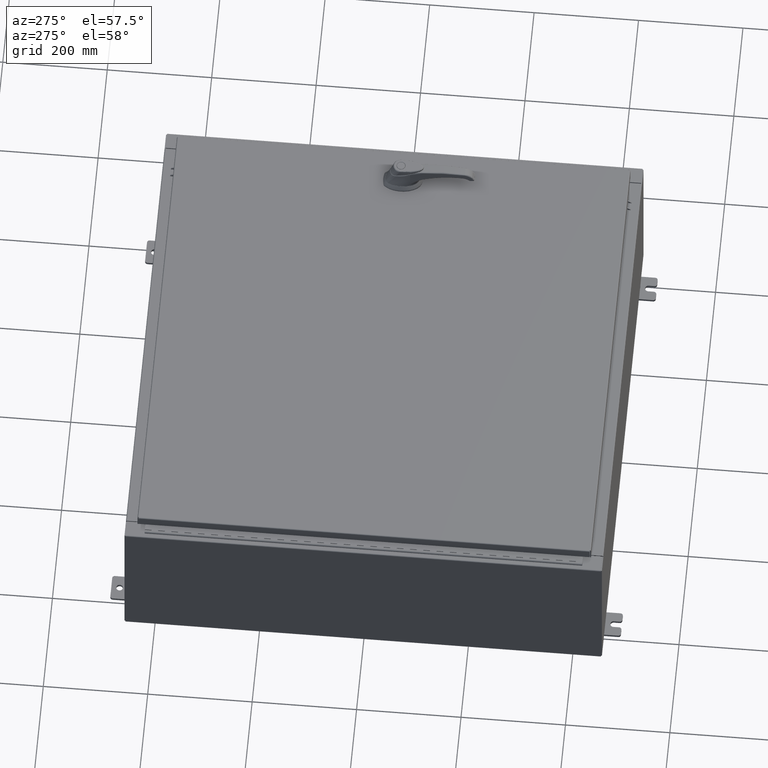
[diagram: clean part render]
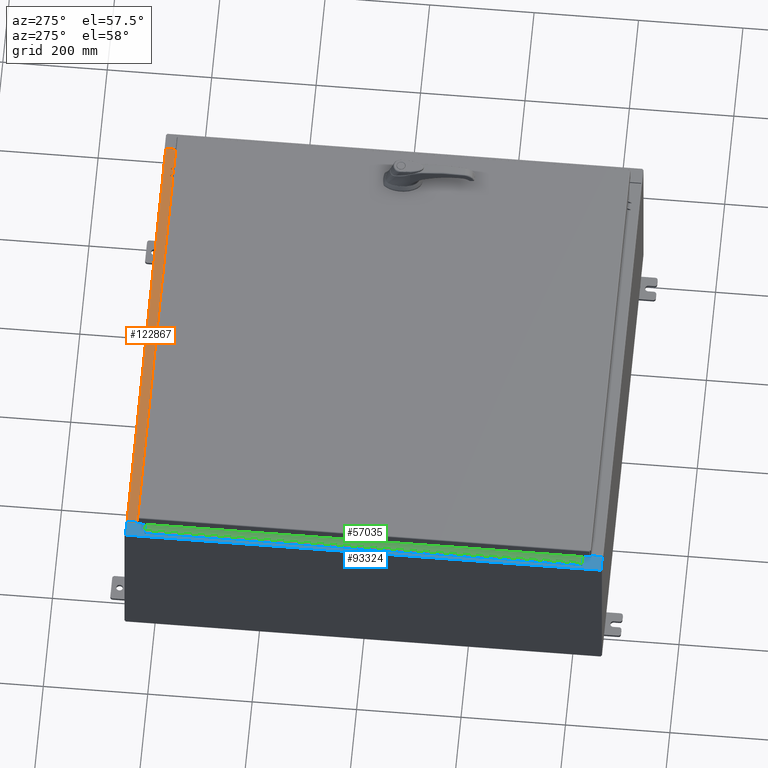
[diagram: same view with three faces highlighted in distinct colors, each labeled with its STEP entity id]
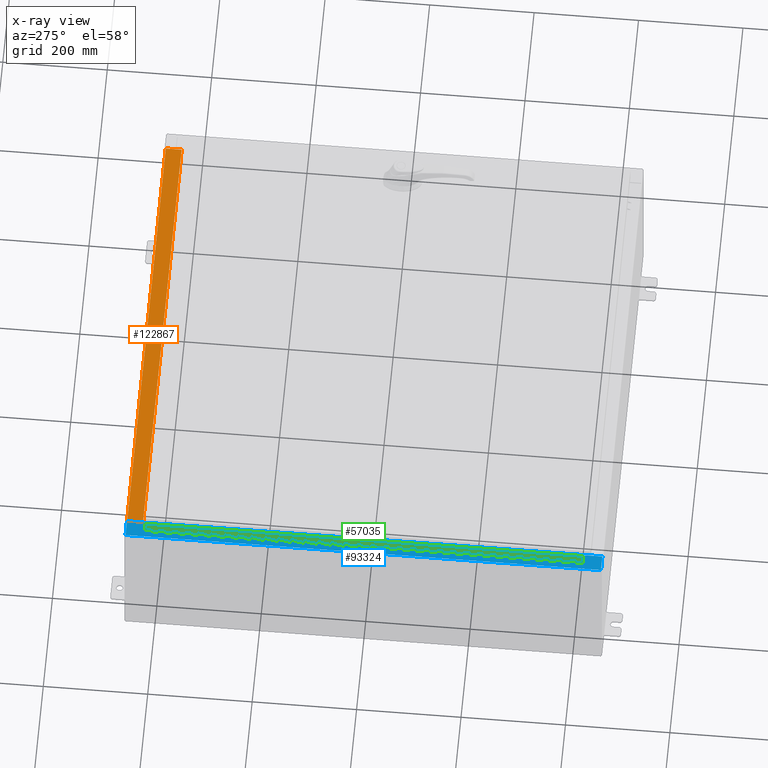
[diagram: x-ray of the same camera — body ghosted, the three highlighted faces saturated]
A machine part, auxiliary view with three faces highlighted in distinct colors.
The next image is the same camera in x-ray (body ghosted, the three faces saturated) — at least one of them is partly hidden behind the body in this view.
Their STEP definitions:

[orange] entity #122867 — the highlighted planar face has unit normal (0, 0, 1).
#573 = VECTOR ( 'NONE', #96444, 39.37007874015748100 ) ;
#1662 = VECTOR ( 'NONE', #47337, 39.37007874015748100 ) ;
#5169 = EDGE_LOOP ( 'NONE', ( #24266, #89001, #73573, #78843 ) ) ;
#8317 = DIRECTION ( 'NONE',  ( -0.0000000000000000000, 1.000000000000000000, -2.674785894579892700E-015 ) ) ;
#9538 = LINE ( 'NONE', #46367, #31993 ) ;
#19191 = CARTESIAN_POINT ( 'NONE',  ( -2.276882898771239300E-018, 1.610972251716581800E-014, 5.999999999999999100 ) ) ;
#24266 = ORIENTED_EDGE ( 'NONE', *, *, #100289, .F. ) ;
#31993 = VECTOR ( 'NONE', #8317, 39.37007874015748100 ) ;
#39176 = CARTESIAN_POINT ( 'NONE',  ( -5.156971724347648400E-018, -0.08769999999999972300, 5.999999999999999100 ) ) ;
#39672 = AXIS2_PLACEMENT_3D ( 'NONE', #19191, #114925, #57719 ) ;
#46367 = CARTESIAN_POINT ( 'NONE',  ( -16.63719999999999600, -0.07469999999999973900, 5.999999999999999100 ) ) ;
#47337 = DIRECTION ( 'NONE',  ( -0.0000000000000000000, -1.000000000000000000, 3.566381192773190000E-015 ) ) ;
#52525 = LINE ( 'NONE', #115001, #1662 ) ;
#57719 = DIRECTION ( 'NONE',  ( 0.0000000000000000000, -1.000000000000000000, 2.674785894579892700E-015 ) ) ;
#58023 = VERTEX_POINT ( 'NONE', #88384 ) ;
#61427 = VECTOR ( 'NONE', #123682, 39.37007874015748100 ) ;
#63434 = VERTEX_POINT ( 'NONE', #86972 ) ;
#70768 = VERTEX_POINT ( 'NONE', #84546 ) ;
#73573 = ORIENTED_EDGE ( 'NONE', *, *, #104452, .F. ) ;
#73920 = LINE ( 'NONE', #39176, #573 ) ;
#78092 = EDGE_CURVE ( 'NONE', #63434, #119676, #73920, .T. ) ;
#78843 = ORIENTED_EDGE ( 'NONE', *, *, #78092, .T. ) ;
#84546 = CARTESIAN_POINT ( 'NONE',  ( -16.63719999999999600, -1.287299999999998600, 6.000000000000002700 ) ) ;
#86972 = CARTESIAN_POINT ( 'NONE',  ( 16.63720000000000400, -0.08769999999999948700, 5.999999999999999100 ) ) ;
#88384 = CARTESIAN_POINT ( 'NONE',  ( 16.63720000000000400, -1.287299999999999400, 6.000000000000003600 ) ) ;
#89001 = ORIENTED_EDGE ( 'NONE', *, *, #105086, .F. ) ;
#96444 = DIRECTION ( 'NONE',  ( -1.000000000000000000, 3.284023746380717400E-017, -8.784060394284559800E-032 ) ) ;
#98189 = CARTESIAN_POINT ( 'NONE',  ( -16.63719999999999600, -0.08769999999999972300, 5.999999999999999100 ) ) ;
#100289 = EDGE_CURVE ( 'NONE', #70768, #119676, #9538, .T. ) ;
#102423 = FACE_OUTER_BOUND ( 'NONE', #5169, .T. ) ;
#104452 = EDGE_CURVE ( 'NONE', #63434, #58023, #52525, .T. ) ;
#104875 = CARTESIAN_POINT ( 'NONE',  ( 16.63720000000000400, -1.287299999999999400, 6.000000000000001800 ) ) ;
#105086 = EDGE_CURVE ( 'NONE', #58023, #70768, #112247, .T. ) ;
#105359 = PLANE ( 'NONE',  #39672 ) ;
#112247 = LINE ( 'NONE', #104875, #61427 ) ;
#114925 = DIRECTION ( 'NONE',  ( 0.0000000000000000000, 2.674785894579892700E-015, 1.000000000000000000 ) ) ;
#115001 = CARTESIAN_POINT ( 'NONE',  ( 16.63720000000000400, -1.300299999999999800, 6.000000000000003600 ) ) ;
#119676 = VERTEX_POINT ( 'NONE', #98189 ) ;
#122867 = ADVANCED_FACE ( 'NONE', ( #102423 ), #105359, .T. ) ;
#123682 = DIRECTION ( 'NONE',  ( -1.000000000000000000, 0.0000000000000000000, 0.0000000000000000000 ) ) ;

[blue] entity #93324 — the highlighted planar face has unit normal (0, 0, -1).
#850 = LINE ( 'NONE', #81828, #48723 ) ;
#1281 = DIRECTION ( 'NONE',  ( -0.0000000000000000000, -1.000000000000000000, -0.0000000000000000000 ) ) ;
#1758 = CARTESIAN_POINT ( 'NONE',  ( -16.69970000000004300, -16.63110000000000400, 11.92530000000000900 ) ) ;
#1925 = ORIENTED_EDGE ( 'NONE', *, *, #122041, .F. ) ;
#2206 = LINE ( 'NONE', #95847, #100924 ) ;
#3057 = DIRECTION ( 'NONE',  ( 7.132762385546384700E-015, 0.0000000000000000000, -1.000000000000000000 ) ) ;
#5996 = CIRCLE ( 'NONE', #110684, 0.01867499999999949400 ) ;
#6028 = ORIENTED_EDGE ( 'NONE', *, *, #36223, .T. ) ;
#7109 = LINE ( 'NONE', #8098, #49012 ) ;
#7947 = VECTOR ( 'NONE', #39989, 39.37007874015748100 ) ;
#8098 = CARTESIAN_POINT ( 'NONE',  ( -16.69970000000004300, 0.0000000000000000000, 11.92530000000000900 ) ) ;
#10973 = VECTOR ( 'NONE', #42592, 39.37007874015748100 ) ;
#15044 = CARTESIAN_POINT ( 'NONE',  ( -8.532114493236880700E-014, -17.92530000000000000, 11.92530000000013000 ) ) ;
#16348 = EDGE_CURVE ( 'NONE', #46521, #62839, #93556, .T. ) ;
#18196 = CARTESIAN_POINT ( 'NONE',  ( -16.75005000000004100, 16.63110000000000000, 11.92530000000000900 ) ) ;
#18525 = EDGE_CURVE ( 'NONE', #38954, #97387, #5996, .T. ) ;
#18855 = CARTESIAN_POINT ( 'NONE',  ( -16.69970000000004300, 0.0000000000000000000, 11.92530000000000900 ) ) ;
#21698 = LINE ( 'NONE', #53199, #69621 ) ;
#21831 = CARTESIAN_POINT ( 'NONE',  ( -8.532114493236880700E-014, 0.0000000000000000000, 11.92530000000013000 ) ) ;
#22743 = ORIENTED_EDGE ( 'NONE', *, *, #67979, .F. ) ;
#24577 = LINE ( 'NONE', #15044, #117344 ) ;
#24867 = FACE_OUTER_BOUND ( 'NONE', #53009, .T. ) ;
#25674 = ORIENTED_EDGE ( 'NONE', *, *, #113108, .F. ) ;
#29081 = CARTESIAN_POINT ( 'NONE',  ( -16.69970000000004300, 16.63110000000000400, 11.92530000000000900 ) ) ;
#32997 = CARTESIAN_POINT ( 'NONE',  ( -16.75005000000004100, 16.59375000000000000, 11.92530000000001200 ) ) ;
#33409 = LINE ( 'NONE', #87661, #7947 ) ;
#33960 = CARTESIAN_POINT ( 'NONE',  ( -16.75005000000004100, -16.61242500000000200, 11.92530000000001200 ) ) ;
#34135 = AXIS2_PLACEMENT_3D ( 'NONE', #50597, #117473, #60254 ) ;
#34957 = VERTEX_POINT ( 'NONE', #75210 ) ;
#35206 = EDGE_CURVE ( 'NONE', #97387, #96262, #33409, .T. ) ;
#35274 = CARTESIAN_POINT ( 'NONE',  ( -17.91230000000004100, 17.92530000000000000, 11.92530000000000400 ) ) ;
#36223 = EDGE_CURVE ( 'NONE', #49162, #82954, #94588, .T. ) ;
#38593 = DIRECTION ( 'NONE',  ( -1.000000000000000000, 0.0000000000000000000, 0.0000000000000000000 ) ) ;
#38954 = VERTEX_POINT ( 'NONE', #117222 ) ;
#39989 = DIRECTION ( 'NONE',  ( 1.000000000000000000, -4.340572780400098900E-014, -4.340572780400098900E-014 ) ) ;
#42592 = DIRECTION ( 'NONE',  ( 1.000000000000000000, 0.0000000000000000000, 0.0000000000000000000 ) ) ;
#42902 = ORIENTED_EDGE ( 'NONE', *, *, #18525, .F. ) ;
#43541 = DIRECTION ( 'NONE',  ( 1.000000000000000000, 0.0000000000000000000, 0.0000000000000000000 ) ) ;
#46343 = ORIENTED_EDGE ( 'NONE', *, *, #16348, .F. ) ;
#46521 = VERTEX_POINT ( 'NONE', #18196 ) ;
#48209 = CARTESIAN_POINT ( 'NONE',  ( -17.91230000000004100, -17.92530000000000000, 11.92530000000000400 ) ) ;
#48661 = VECTOR ( 'NONE', #1281, 39.37007874015748100 ) ;
#48723 = VECTOR ( 'NONE', #90998, 39.37007874015748100 ) ;
#49012 = VECTOR ( 'NONE', #103459, 39.37007874015748100 ) ;
#49162 = VERTEX_POINT ( 'NONE', #29081 ) ;
#50118 = ORIENTED_EDGE ( 'NONE', *, *, #90909, .T. ) ;
#50375 = CARTESIAN_POINT ( 'NONE',  ( -16.75005000000004100, -16.63110000000000000, 11.92530000000000900 ) ) ;
#50597 = CARTESIAN_POINT ( 'NONE',  ( -16.75005000000004100, 16.61242500000000200, 11.92530000000001200 ) ) ;
#53009 = EDGE_LOOP ( 'NONE', ( #22743, #6028, #109704, #25674, #65342, #50118, #86358, #42902, #98605, #1925, #119207, #46343 ) ) ;
#53199 = CARTESIAN_POINT ( 'NONE',  ( -16.69970000000004300, 16.63110000000000400, 11.92530000000000900 ) ) ;
#55229 = LINE ( 'NONE', #35274, #100076 ) ;
#57180 = AXIS2_PLACEMENT_3D ( 'NONE', #21831, #3057, #69962 ) ;
#57483 = EDGE_CURVE ( 'NONE', #82954, #76690, #850, .T. ) ;
#60017 = EDGE_CURVE ( 'NONE', #34957, #38954, #2206, .T. ) ;
#60232 = CARTESIAN_POINT ( 'NONE',  ( -16.75005000000004100, 16.59375000000000000, 11.92530000000000900 ) ) ;
#60254 = DIRECTION ( 'NONE',  ( 1.000000000000000000, 0.0000000000000000000, 0.0000000000000000000 ) ) ;
#62839 = VERTEX_POINT ( 'NONE', #60232 ) ;
#63178 = VERTEX_POINT ( 'NONE', #110487 ) ;
#65342 = ORIENTED_EDGE ( 'NONE', *, *, #117880, .T. ) ;
#65415 = CARTESIAN_POINT ( 'NONE',  ( -16.69970000000004300, 17.92530000000000000, 11.92530000000000900 ) ) ;
#67979 = EDGE_CURVE ( 'NONE', #49162, #46521, #21698, .T. ) ;
#68172 = CARTESIAN_POINT ( 'NONE',  ( -16.71270000000004400, 16.59375000000000000, 11.92530000000001200 ) ) ;
#69621 = VECTOR ( 'NONE', #110474, 39.37007874015748100 ) ;
#69962 = DIRECTION ( 'NONE',  ( -1.000000000000000000, 0.0000000000000000000, -7.132762385546384700E-015 ) ) ;
#70655 = CARTESIAN_POINT ( 'NONE',  ( -16.71270000000004400, 16.59375000000000000, 11.92530000000001200 ) ) ;
#75210 = CARTESIAN_POINT ( 'NONE',  ( -16.71270000000004400, -16.59375000000000000, 11.92530000000001200 ) ) ;
#76690 = VERTEX_POINT ( 'NONE', #86057 ) ;
#78161 = VECTOR ( 'NONE', #85805, 39.37007874015748100 ) ;
#81828 = CARTESIAN_POINT ( 'NONE',  ( -8.532114493236880700E-014, 17.92530000000000000, 11.92530000000013000 ) ) ;
#82012 = DIRECTION ( 'NONE',  ( 1.000000000000000000, -0.0000000000000000000, 7.132762385546384700E-015 ) ) ;
#82954 = VERTEX_POINT ( 'NONE', #65415 ) ;
#82961 = DIRECTION ( 'NONE',  ( -0.0000000000000000000, 1.000000000000000000, -0.0000000000000000000 ) ) ;
#84823 = VERTEX_POINT ( 'NONE', #70655 ) ;
#85805 = DIRECTION ( 'NONE',  ( 0.0000000000000000000, 1.000000000000000000, 0.0000000000000000000 ) ) ;
#86057 = CARTESIAN_POINT ( 'NONE',  ( -17.91230000000004100, 17.92530000000000000, 11.92530000000000400 ) ) ;
#86358 = ORIENTED_EDGE ( 'NONE', *, *, #35206, .F. ) ;
#87661 = CARTESIAN_POINT ( 'NONE',  ( -16.75005000000004100, -16.63110000000000000, 11.92530000000001200 ) ) ;
#90315 = LINE ( 'NONE', #32997, #10973 ) ;
#90909 = EDGE_CURVE ( 'NONE', #63178, #96262, #7109, .T. ) ;
#90998 = DIRECTION ( 'NONE',  ( -1.000000000000000000, 0.0000000000000000000, -7.132762385546384700E-015 ) ) ;
#93324 = ADVANCED_FACE ( 'NONE', ( #24867 ), #113195, .F. ) ;
#93556 = CIRCLE ( 'NONE', #34135, 0.01867499999999949400 ) ;
#94588 = LINE ( 'NONE', #18855, #78161 ) ;
#95847 = CARTESIAN_POINT ( 'NONE',  ( -16.71270000000004400, -16.59375000000000000, 11.92530000000001200 ) ) ;
#96262 = VERTEX_POINT ( 'NONE', #1758 ) ;
#96509 = LINE ( 'NONE', #68172, #48661 ) ;
#97387 = VERTEX_POINT ( 'NONE', #50375 ) ;
#98605 = ORIENTED_EDGE ( 'NONE', *, *, #60017, .F. ) ;
#100076 = VECTOR ( 'NONE', #82961, 39.37007874015748100 ) ;
#100821 = DIRECTION ( 'NONE',  ( -7.132762385546384700E-015, -0.0000000000000000000, 1.000000000000000000 ) ) ;
#100924 = VECTOR ( 'NONE', #38593, 39.37007874015748100 ) ;
#103459 = DIRECTION ( 'NONE',  ( 0.0000000000000000000, 1.000000000000000000, 0.0000000000000000000 ) ) ;
#109704 = ORIENTED_EDGE ( 'NONE', *, *, #57483, .T. ) ;
#110474 = DIRECTION ( 'NONE',  ( -1.000000000000000000, -4.340572780400098900E-014, 4.340572780400098900E-014 ) ) ;
#110487 = CARTESIAN_POINT ( 'NONE',  ( -16.69970000000004300, -17.92530000000000000, 11.92530000000000900 ) ) ;
#110684 = AXIS2_PLACEMENT_3D ( 'NONE', #33960, #100821, #43541 ) ;
#113108 = EDGE_CURVE ( 'NONE', #118965, #76690, #55229, .T. ) ;
#113195 = PLANE ( 'NONE',  #57180 ) ;
#117222 = CARTESIAN_POINT ( 'NONE',  ( -16.75005000000004100, -16.59375000000000000, 11.92530000000000900 ) ) ;
#117344 = VECTOR ( 'NONE', #82012, 39.37007874015748100 ) ;
#117473 = DIRECTION ( 'NONE',  ( -7.132762385546384700E-015, -0.0000000000000000000, 1.000000000000000000 ) ) ;
#117880 = EDGE_CURVE ( 'NONE', #118965, #63178, #24577, .T. ) ;
#118965 = VERTEX_POINT ( 'NONE', #48209 ) ;
#119207 = ORIENTED_EDGE ( 'NONE', *, *, #124031, .F. ) ;
#122041 = EDGE_CURVE ( 'NONE', #84823, #34957, #96509, .T. ) ;
#124031 = EDGE_CURVE ( 'NONE', #62839, #84823, #90315, .T. ) ;

[green] entity #57035 — the highlighted planar face has unit normal (-0, -0, 1).
#294 = CARTESIAN_POINT ( 'NONE',  ( -0.6869999999999982800, 0.5504999999999997700, -17.50000000000000000 ) ) ;
#380 = LINE ( 'NONE', #43551, #102147 ) ;
#387 = CARTESIAN_POINT ( 'NONE',  ( -0.6869999999999982800, 0.5504999999999997700, -4.500000000000000000 ) ) ;
#482 = ORIENTED_EDGE ( 'NONE', *, *, #85135, .T. ) ;
#571 = EDGE_CURVE ( 'NONE', #67675, #43549, #55925, .T. ) ;
#1227 = VECTOR ( 'NONE', #33442, 39.37007874015748100 ) ;
#1340 = LINE ( 'NONE', #5204, #74693 ) ;
#1355 = ORIENTED_EDGE ( 'NONE', *, *, #85874, .T. ) ;
#1377 = DIRECTION ( 'NONE',  ( -3.389037039080723100E-015, -1.000000000000000000, 0.0000000000000000000 ) ) ;
#1491 = VERTEX_POINT ( 'NONE', #14133 ) ;
#1529 = DIRECTION ( 'NONE',  ( 0.0000000000000000000, 0.0000000000000000000, 1.000000000000000000 ) ) ;
#1714 = ORIENTED_EDGE ( 'NONE', *, *, #56436, .F. ) ;
#1753 = CARTESIAN_POINT ( 'NONE',  ( -0.6869999999999973900, 0.8004999999999995500, -22.00000000000000000 ) ) ;
#1793 = VERTEX_POINT ( 'NONE', #67895 ) ;
#1861 = ORIENTED_EDGE ( 'NONE', *, *, #55109, .F. ) ;
#2069 = VERTEX_POINT ( 'NONE', #18793 ) ;
#2164 = DIRECTION ( 'NONE',  ( 0.0000000000000000000, -0.0000000000000000000, -1.000000000000000000 ) ) ;
#2396 = CARTESIAN_POINT ( 'NONE',  ( -0.6869999999999982800, 0.5504999999999997700, -8.500000000000000000 ) ) ;
#2587 = LINE ( 'NONE', #74933, #101302 ) ;
#2666 = LINE ( 'NONE', #96320, #84995 ) ;
#2852 = CARTESIAN_POINT ( 'NONE',  ( -0.6869999999999982800, 0.5504999999999997700, -2.500000000000000000 ) ) ;
#3058 = DIRECTION ( 'NONE',  ( 0.0000000000000000000, -0.0000000000000000000, -1.000000000000000000 ) ) ;
#3297 = CARTESIAN_POINT ( 'NONE',  ( -0.6869999999999978300, 0.6754999999999996600, 0.0000000000000000000 ) ) ;
#3327 = VECTOR ( 'NONE', #54485, 39.37007874015748100 ) ;
#3341 = EDGE_CURVE ( 'NONE', #27246, #8769, #87077, .T. ) ;
#3392 = CARTESIAN_POINT ( 'NONE',  ( -0.6869999999999978300, 0.6754999999999996600, -14.49999999999999800 ) ) ;
#3829 = VECTOR ( 'NONE', #87844, 39.37007874015748100 ) ;
#3848 = VERTEX_POINT ( 'NONE', #108678 ) ;
#4292 = CARTESIAN_POINT ( 'NONE',  ( -0.6869999999999973900, 0.8004999999999995500, -26.00000000000000000 ) ) ;
#4313 = VERTEX_POINT ( 'NONE', #67404 ) ;
#4361 = VECTOR ( 'NONE', #82150, 39.37007874015748100 ) ;
#4394 = VERTEX_POINT ( 'NONE', #49833 ) ;
#4405 = DIRECTION ( 'NONE',  ( -3.389037039080723100E-015, -1.000000000000000000, 0.0000000000000000000 ) ) ;
#4489 = VERTEX_POINT ( 'NONE', #3392 ) ;
#4617 = VERTEX_POINT ( 'NONE', #99530 ) ;
#4747 = LINE ( 'NONE', #1753, #30161 ) ;
#4974 = LINE ( 'NONE', #35981, #100683 ) ;
#4978 = LINE ( 'NONE', #59271, #103727 ) ;
#5034 = DIRECTION ( 'NONE',  ( 1.000000000000000000, -3.369016658928398200E-015, 0.0000000000000000000 ) ) ;
#5182 = ORIENTED_EDGE ( 'NONE', *, *, #101212, .T. ) ;
#5204 = CARTESIAN_POINT ( 'NONE',  ( -0.6869999999999973900, 0.8004999999999995500, -2.000000000000000000 ) ) ;
#5375 = ORIENTED_EDGE ( 'NONE', *, *, #103193, .F. ) ;
#5547 = VERTEX_POINT ( 'NONE', #62844 ) ;
#5605 = DIRECTION ( 'NONE',  ( 3.389037039080723100E-015, 1.000000000000000000, -0.0000000000000000000 ) ) ;
#5685 = LINE ( 'NONE', #88052, #56576 ) ;
#5756 = LINE ( 'NONE', #7466, #73092 ) ;
#5881 = VERTEX_POINT ( 'NONE', #122350 ) ;
#6057 = VECTOR ( 'NONE', #93395, 39.37007874015748100 ) ;
#6095 = CARTESIAN_POINT ( 'NONE',  ( -0.6869999999999978300, 0.6754999999999996600, -33.00000000000000000 ) ) ;
#6674 = ORIENTED_EDGE ( 'NONE', *, *, #110125, .F. ) ;
#6805 = LINE ( 'NONE', #20911, #3829 ) ;
#6921 = ORIENTED_EDGE ( 'NONE', *, *, #111220, .F. ) ;
#6953 = VECTOR ( 'NONE', #87575, 39.37007874015748100 ) ;
#6955 = CARTESIAN_POINT ( 'NONE',  ( -0.6869999999999982800, 0.5504999999999997700, -24.50000000000000000 ) ) ;
#6982 = EDGE_CURVE ( 'NONE', #32391, #29094, #380, .T. ) ;
#7020 = CARTESIAN_POINT ( 'NONE',  ( -0.6869999999999973900, 0.8004999999999995500, -15.50000000000000000 ) ) ;
#7161 = EDGE_CURVE ( 'NONE', #105491, #95708, #115544, .T. ) ;
#7273 = CARTESIAN_POINT ( 'NONE',  ( -0.6869999999999982800, 0.5504999999999997700, -13.50000000000000000 ) ) ;
#7276 = CARTESIAN_POINT ( 'NONE',  ( -0.6869999999999978300, 0.6754999999999996600, -2.500000000000000000 ) ) ;
#7466 = CARTESIAN_POINT ( 'NONE',  ( -0.6869999999999982800, 0.5504999999999997700, -20.50000000000000400 ) ) ;
#7519 = EDGE_CURVE ( 'NONE', #43529, #75975, #18254, .T. ) ;
#7555 = EDGE_CURVE ( 'NONE', #12327, #92060, #15240, .T. ) ;
#7573 = DIRECTION ( 'NONE',  ( 0.0000000000000000000, 0.0000000000000000000, 1.000000000000000000 ) ) ;
#7938 = DIRECTION ( 'NONE',  ( -3.389037039080723100E-015, -1.000000000000000000, 0.0000000000000000000 ) ) ;
#7948 = EDGE_CURVE ( 'NONE', #4617, #31621, #99003, .T. ) ;
#8166 = EDGE_CURVE ( 'NONE', #90119, #26754, #58645, .T. ) ;
#8182 = EDGE_CURVE ( 'NONE', #110314, #44579, #4747, .T. ) ;
#8510 = LINE ( 'NONE', #123229, #81865 ) ;
#8687 = CARTESIAN_POINT ( 'NONE',  ( -0.6869999999999973900, 0.8004999999999995500, -11.99999999999999800 ) ) ;
#8769 = VERTEX_POINT ( 'NONE', #58926 ) ;
#8795 = CARTESIAN_POINT ( 'NONE',  ( -0.6869999999999982800, 0.5504999999999997700, -11.99999999999999800 ) ) ;
#8816 = ORIENTED_EDGE ( 'NONE', *, *, #44551, .F. ) ;
#8888 = VECTOR ( 'NONE', #63046, 39.37007874015748100 ) ;
#8962 = CARTESIAN_POINT ( 'NONE',  ( -0.6869999999999982800, 0.5504999999999997700, -31.50000000000000400 ) ) ;
#8996 = CARTESIAN_POINT ( 'NONE',  ( -0.6869999999999978300, 0.6754999999999996600, -5.000000000000000000 ) ) ;
#9451 = EDGE_CURVE ( 'NONE', #101165, #115916, #31490, .T. ) ;
#9720 = VERTEX_POINT ( 'NONE', #109723 ) ;
#9772 = ORIENTED_EDGE ( 'NONE', *, *, #54912, .F. ) ;
#9785 = EDGE_CURVE ( 'NONE', #64777, #116014, #112203, .T. ) ;
#9960 = CARTESIAN_POINT ( 'NONE',  ( -0.6869999999999978300, 0.6754999999999996600, -20.00000000000000000 ) ) ;
#10103 = DIRECTION ( 'NONE',  ( 0.0000000000000000000, -0.0000000000000000000, -1.000000000000000000 ) ) ;
#10110 = CARTESIAN_POINT ( 'NONE',  ( -0.6870000000000022800, -0.6245000000000003900, -33.00000000000000000 ) ) ;
#10348 = EDGE_CURVE ( 'NONE', #16001, #44330, #104678, .T. ) ;
#10418 = LINE ( 'NONE', #114429, #58362 ) ;
#10483 = VERTEX_POINT ( 'NONE', #43959 ) ;
#10533 = ORIENTED_EDGE ( 'NONE', *, *, #111379, .F. ) ;
#10863 = ORIENTED_EDGE ( 'NONE', *, *, #9785, .F. ) ;
#10978 = CARTESIAN_POINT ( 'NONE',  ( -0.6869999999999973900, 0.8004999999999995500, -21.50000000000000400 ) ) ;
#10999 = ORIENTED_EDGE ( 'NONE', *, *, #7555, .F. ) ;
#11147 = ORIENTED_EDGE ( 'NONE', *, *, #119320, .F. ) ;
#11362 = VERTEX_POINT ( 'NONE', #11930 ) ;
#11466 = VERTEX_POINT ( 'NONE', #82987 ) ;
#11486 = LINE ( 'NONE', #91410, #14472 ) ;
#11502 = VERTEX_POINT ( 'NONE', #121405 ) ;
#11639 = VERTEX_POINT ( 'NONE', #38155 ) ;
#11919 = VECTOR ( 'NONE', #16620, 39.37007874015748100 ) ;
#11930 = CARTESIAN_POINT ( 'NONE',  ( -0.6869999999999978300, 0.6754999999999996600, -11.50000000000000000 ) ) ;
#12277 = VECTOR ( 'NONE', #10103, 39.37007874015748100 ) ;
#12327 = VERTEX_POINT ( 'NONE', #12370 ) ;
#12370 = CARTESIAN_POINT ( 'NONE',  ( -0.6869999999999982800, 0.5504999999999997700, -1.499999999999999800 ) ) ;
#12604 = DIRECTION ( 'NONE',  ( -3.389037039080723100E-015, -1.000000000000000000, 0.0000000000000000000 ) ) ;
#12670 = EDGE_CURVE ( 'NONE', #9720, #23648, #90893, .T. ) ;
#12714 = VECTOR ( 'NONE', #70825, 39.37007874015748100 ) ;
#12897 = VECTOR ( 'NONE', #60698, 39.37007874015748100 ) ;
#13165 = VERTEX_POINT ( 'NONE', #73632 ) ;
#14013 = DIRECTION ( 'NONE',  ( 3.389037039080723100E-015, 1.000000000000000000, -0.0000000000000000000 ) ) ;
#14133 = CARTESIAN_POINT ( 'NONE',  ( -0.6869999999999982800, 0.5504999999999997700, -28.50000000000000000 ) ) ;
#14306 = VERTEX_POINT ( 'NONE', #40221 ) ;
#14405 = VECTOR ( 'NONE', #39054, 39.37007874015748100 ) ;
#14472 = VECTOR ( 'NONE', #24470, 39.37007874015748100 ) ;
#14498 = LINE ( 'NONE', #121992, #87828 ) ;
#14540 = LINE ( 'NONE', #68263, #113290 ) ;
#14683 = CARTESIAN_POINT ( 'NONE',  ( -0.6869999999999982800, 0.5504999999999997700, -2.999999999999999600 ) ) ;
#14704 = ORIENTED_EDGE ( 'NONE', *, *, #97645, .F. ) ;
#14982 = CARTESIAN_POINT ( 'NONE',  ( -0.6869999999999982800, 0.5504999999999997700, -19.50000000000000000 ) ) ;
#15147 = ORIENTED_EDGE ( 'NONE', *, *, #48019, .T. ) ;
#15240 = LINE ( 'NONE', #69217, #114014 ) ;
#15616 = EDGE_CURVE ( 'NONE', #54491, #2069, #84705, .T. ) ;
#15926 = CARTESIAN_POINT ( 'NONE',  ( -0.6869999999999982800, 0.5504999999999997700, -30.50000000000000400 ) ) ;
#15936 = EDGE_CURVE ( 'NONE', #23991, #91111, #18774, .T. ) ;
#15949 = DIRECTION ( 'NONE',  ( 0.0000000000000000000, -0.0000000000000000000, -1.000000000000000000 ) ) ;
#16001 = VERTEX_POINT ( 'NONE', #76735 ) ;
#16165 = LINE ( 'NONE', #49234, #108935 ) ;
#16240 = ORIENTED_EDGE ( 'NONE', *, *, #94601, .F. ) ;
#16252 = DIRECTION ( 'NONE',  ( 3.389037039080723100E-015, 1.000000000000000000, -0.0000000000000000000 ) ) ;
#16358 = ORIENTED_EDGE ( 'NONE', *, *, #63071, .F. ) ;
#16533 = LINE ( 'NONE', #104284, #67441 ) ;
#16620 = DIRECTION ( 'NONE',  ( -3.389037039080723100E-015, -1.000000000000000000, 0.0000000000000000000 ) ) ;
#16687 = ORIENTED_EDGE ( 'NONE', *, *, #29196, .T. ) ;
#16820 = VECTOR ( 'NONE', #83689, 39.37007874015748100 ) ;
#16895 = DIRECTION ( 'NONE',  ( -3.389037039080723100E-015, -1.000000000000000000, 0.0000000000000000000 ) ) ;
#16922 = EDGE_CURVE ( 'NONE', #11502, #67675, #70565, .T. ) ;
#16941 = DIRECTION ( 'NONE',  ( 0.0000000000000000000, -0.0000000000000000000, -1.000000000000000000 ) ) ;
#16964 = VERTEX_POINT ( 'NONE', #115658 ) ;
#17213 = VECTOR ( 'NONE', #31870, 39.37007874015748100 ) ;
#17308 = CARTESIAN_POINT ( 'NONE',  ( -0.6869999999999973900, 0.8004999999999995500, -23.00000000000000000 ) ) ;
#17486 = CARTESIAN_POINT ( 'NONE',  ( -0.6869999999999982800, 0.5504999999999997700, -11.50000000000000000 ) ) ;
#17661 = EDGE_CURVE ( 'NONE', #87689, #111664, #98857, .T. ) ;
#17826 = CARTESIAN_POINT ( 'NONE',  ( -0.6869999999999973900, 0.8004999999999995500, -25.50000000000000400 ) ) ;
#17978 = ORIENTED_EDGE ( 'NONE', *, *, #10348, .F. ) ;
#18175 = VECTOR ( 'NONE', #90748, 39.37007874015748100 ) ;
#18254 = LINE ( 'NONE', #49562, #69176 ) ;
#18272 = ORIENTED_EDGE ( 'NONE', *, *, #35140, .F. ) ;
#18670 = VECTOR ( 'NONE', #40013, 39.37007874015748100 ) ;
#18774 = LINE ( 'NONE', #57089, #92120 ) ;
#18793 = CARTESIAN_POINT ( 'NONE',  ( -0.6869999999999978300, 0.6754999999999996600, -28.99999999999999600 ) ) ;
#18819 = VECTOR ( 'NONE', #97347, 39.37007874015748100 ) ;
#18847 = ORIENTED_EDGE ( 'NONE', *, *, #83926, .F. ) ;
#18989 = DIRECTION ( 'NONE',  ( 3.389037039080723100E-015, 1.000000000000000000, -0.0000000000000000000 ) ) ;
#19047 = LINE ( 'NONE', #95070, #72971 ) ;
#19207 = CARTESIAN_POINT ( 'NONE',  ( -0.6869999999999982800, 0.5504999999999997700, -2.000000000000000000 ) ) ;
#19514 = CARTESIAN_POINT ( 'NONE',  ( -0.6869999999999982800, 0.5504999999999997700, -24.99999999999999600 ) ) ;
#19604 = VERTEX_POINT ( 'NONE', #100577 ) ;
#19760 = ORIENTED_EDGE ( 'NONE', *, *, #45209, .F. ) ;
#19823 = CARTESIAN_POINT ( 'NONE',  ( -0.6869999999999978300, 0.6754999999999996600, -15.50000000000000000 ) ) ;
#20707 = EDGE_CURVE ( 'NONE', #66762, #23358, #52095, .T. ) ;
#20889 = CARTESIAN_POINT ( 'NONE',  ( -0.6869999999999973900, 0.8004999999999995500, -9.500000000000000000 ) ) ;
#20911 = CARTESIAN_POINT ( 'NONE',  ( -0.6869999999999982800, 0.5504999999999997700, -30.50000000000000400 ) ) ;
#21053 = CARTESIAN_POINT ( 'NONE',  ( -0.6869999999999978300, 0.6754999999999996600, -33.00000000000000000 ) ) ;
#21261 = LINE ( 'NONE', #48972, #69202 ) ;
#21307 = EDGE_CURVE ( 'NONE', #4489, #14306, #108825, .T. ) ;
#21310 = LINE ( 'NONE', #90427, #72244 ) ;
#21661 = LINE ( 'NONE', #30413, #18670 ) ;
#21665 = EDGE_CURVE ( 'NONE', #95708, #107864, #23490, .T. ) ;
#21710 = VECTOR ( 'NONE', #73488, 39.37007874015748100 ) ;
#21832 = LINE ( 'NONE', #108015, #117580 ) ;
#21936 = VECTOR ( 'NONE', #77034, 39.37007874015748100 ) ;
#22030 = LINE ( 'NONE', #35115, #69940 ) ;
#22061 = VECTOR ( 'NONE', #99811, 39.37007874015748100 ) ;
#22387 = VECTOR ( 'NONE', #71401, 39.37007874015748100 ) ;
#22436 = LINE ( 'NONE', #85101, #70350 ) ;
#22470 = VERTEX_POINT ( 'NONE', #115955 ) ;
#22593 = VECTOR ( 'NONE', #32361, 39.37007874015748100 ) ;
#22666 = CARTESIAN_POINT ( 'NONE',  ( -0.6869999999999978300, 0.6754999999999996600, -22.50000000000000000 ) ) ;
#22677 = VECTOR ( 'NONE', #35681, 39.37007874015748100 ) ;
#22775 = CARTESIAN_POINT ( 'NONE',  ( -0.6869999999999978300, 0.6754999999999996600, -14.99999999999999800 ) ) ;
#22819 = LINE ( 'NONE', #106808, #121584 ) ;
#23035 = ORIENTED_EDGE ( 'NONE', *, *, #3341, .F. ) ;
#23246 = LINE ( 'NONE', #102266, #115986 ) ;
#23358 = VERTEX_POINT ( 'NONE', #60174 ) ;
#23434 = ORIENTED_EDGE ( 'NONE', *, *, #85066, .T. ) ;
#23490 = LINE ( 'NONE', #85950, #90853 ) ;
#23566 = CARTESIAN_POINT ( 'NONE',  ( -0.6869999999999982800, 0.5504999999999997700, -23.99999999999999600 ) ) ;
#23648 = VERTEX_POINT ( 'NONE', #6955 ) ;
#23752 = LINE ( 'NONE', #66695, #49241 ) ;
#23991 = VERTEX_POINT ( 'NONE', #107248 ) ;
#24134 = CARTESIAN_POINT ( 'NONE',  ( -0.6869999999999982800, 0.5504999999999997700, -10.00000000000000000 ) ) ;
#24140 = VECTOR ( 'NONE', #26930, 39.37007874015748100 ) ;
#24229 = VECTOR ( 'NONE', #84359, 39.37007874015748100 ) ;
#24470 = DIRECTION ( 'NONE',  ( 0.0000000000000000000, 0.0000000000000000000, 1.000000000000000000 ) ) ;
#24495 = CARTESIAN_POINT ( 'NONE',  ( -0.6869999999999982800, 0.5504999999999997700, -8.500000000000000000 ) ) ;
#24519 = CARTESIAN_POINT ( 'NONE',  ( -0.6869999999999982800, 0.5504999999999997700, -28.50000000000000000 ) ) ;
#24699 = VERTEX_POINT ( 'NONE', #47781 ) ;
#24729 = VERTEX_POINT ( 'NONE', #387 ) ;
#24796 = EDGE_CURVE ( 'NONE', #105491, #5547, #120486, .T. ) ;
#25080 = EDGE_CURVE ( 'NONE', #43265, #115326, #29191, .T. ) ;
#25148 = ORIENTED_EDGE ( 'NONE', *, *, #24796, .T. ) ;
#25153 = VECTOR ( 'NONE', #51468, 39.37007874015748100 ) ;
#25450 = ORIENTED_EDGE ( 'NONE', *, *, #120184, .T. ) ;
#25709 = VERTEX_POINT ( 'NONE', #14683 ) ;
#25753 = ORIENTED_EDGE ( 'NONE', *, *, #58602, .F. ) ;
#25808 = VERTEX_POINT ( 'NONE', #54406 ) ;
#25828 = CARTESIAN_POINT ( 'NONE',  ( -0.6869999999999978300, 0.6754999999999996600, -5.500000000000000000 ) ) ;
#25900 = CARTESIAN_POINT ( 'NONE',  ( -0.6869999999999978300, 0.6754999999999996600, -33.00000000000000000 ) ) ;
#26186 = VECTOR ( 'NONE', #73906, 39.37007874015748100 ) ;
#26268 = EDGE_CURVE ( 'NONE', #25709, #58636, #59013, .T. ) ;
#26376 = CARTESIAN_POINT ( 'NONE',  ( -0.6869999999999982800, 0.5504999999999997700, -21.50000000000000400 ) ) ;
#26454 = CARTESIAN_POINT ( 'NONE',  ( -0.6869999999999978300, 0.6754999999999996600, -24.99999999999999600 ) ) ;
#26492 = CARTESIAN_POINT ( 'NONE',  ( -0.6869999999999978300, 0.6754999999999996600, -33.00000000000000000 ) ) ;
#26493 = CARTESIAN_POINT ( 'NONE',  ( -0.6869999999999978300, 0.6754999999999996600, -12.99999999999999800 ) ) ;
#26754 = VERTEX_POINT ( 'NONE', #49660 ) ;
#26930 = DIRECTION ( 'NONE',  ( 3.389037039080723100E-015, 1.000000000000000000, -0.0000000000000000000 ) ) ;
#27055 = VECTOR ( 'NONE', #30554, 39.37007874015748100 ) ;
#27122 = DIRECTION ( 'NONE',  ( 3.389037039080723100E-015, 1.000000000000000000, -0.0000000000000000000 ) ) ;
#27127 = VERTEX_POINT ( 'NONE', #8962 ) ;
#27174 = LINE ( 'NONE', #122280, #97475 ) ;
#27246 = VERTEX_POINT ( 'NONE', #72648 ) ;
#27460 = VECTOR ( 'NONE', #32588, 39.37007874015748100 ) ;
#27463 = CARTESIAN_POINT ( 'NONE',  ( -0.6869999999999978300, 0.6754999999999996600, -33.00000000000000000 ) ) ;
#27545 = DIRECTION ( 'NONE',  ( -3.389037039080723100E-015, -1.000000000000000000, 0.0000000000000000000 ) ) ;
#27797 = DIRECTION ( 'NONE',  ( -3.389037039080723100E-015, -1.000000000000000000, 0.0000000000000000000 ) ) ;
#27992 = LINE ( 'NONE', #122971, #50443 ) ;
#28105 = EDGE_CURVE ( 'NONE', #75175, #4617, #37718, .T. ) ;
#28243 = EDGE_CURVE ( 'NONE', #98767, #103490, #111024, .T. ) ;
#28578 = VECTOR ( 'NONE', #83228, 39.37007874015748100 ) ;
#28588 = CARTESIAN_POINT ( 'NONE',  ( -0.6869999999999978300, 0.6754999999999996600, -26.50000000000000400 ) ) ;
#28599 = ORIENTED_EDGE ( 'NONE', *, *, #76327, .F. ) ;
#28619 = CARTESIAN_POINT ( 'NONE',  ( -0.6869999999999973900, 0.8004999999999995500, -7.000000000000000000 ) ) ;
#28659 = CARTESIAN_POINT ( 'NONE',  ( -0.6869999999999982800, 0.5504999999999997700, -17.99999999999999600 ) ) ;
#28666 = VECTOR ( 'NONE', #93314, 39.37007874015748100 ) ;
#28930 = DIRECTION ( 'NONE',  ( 3.389037039080723100E-015, 1.000000000000000000, -0.0000000000000000000 ) ) ;
#28983 = VECTOR ( 'NONE', #3058, 39.37007874015748100 ) ;
#29094 = VERTEX_POINT ( 'NONE', #59760 ) ;
#29191 = LINE ( 'NONE', #109780, #51648 ) ;
#29196 = EDGE_CURVE ( 'NONE', #84554, #44330, #47523, .T. ) ;
#29207 = LINE ( 'NONE', #64280, #26186 ) ;
#29432 = CARTESIAN_POINT ( 'NONE',  ( -0.6869999999999982800, 0.5504999999999997700, -0.5000000000000000000 ) ) ;
#29494 = VECTOR ( 'NONE', #68071, 39.37007874015748100 ) ;
#29538 = VERTEX_POINT ( 'NONE', #113964 ) ;
#29737 = VECTOR ( 'NONE', #59702, 39.37007874015748100 ) ;
#29809 = VERTEX_POINT ( 'NONE', #99665 ) ;
#29995 = CARTESIAN_POINT ( 'NONE',  ( -0.6869999999999982800, 0.5504999999999997700, -29.50000000000000000 ) ) ;
#30010 = CARTESIAN_POINT ( 'NONE',  ( -0.6869999999999982800, 0.5504999999999997700, -24.50000000000000000 ) ) ;
#30062 = VECTOR ( 'NONE', #84774, 39.37007874015748100 ) ;
#30079 = EDGE_CURVE ( 'NONE', #87350, #29094, #95245, .T. ) ;
#30100 = CARTESIAN_POINT ( 'NONE',  ( -0.6869999999999978300, 0.6754999999999996600, -6.000000000000000900 ) ) ;
#30161 = VECTOR ( 'NONE', #59071, 39.37007874015748100 ) ;
#30304 = CARTESIAN_POINT ( 'NONE',  ( -0.6869999999999973900, 0.8004999999999995500, -30.50000000000000400 ) ) ;
#30347 = CARTESIAN_POINT ( 'NONE',  ( -0.6869999999999982800, 0.5504999999999997700, -23.00000000000000000 ) ) ;
#30369 = DIRECTION ( 'NONE',  ( 3.389037039080723100E-015, 1.000000000000000000, -0.0000000000000000000 ) ) ;
#30413 = CARTESIAN_POINT ( 'NONE',  ( -0.6869999999999973900, 0.8004999999999995500, -5.500000000000000000 ) ) ;
#30441 = VERTEX_POINT ( 'NONE', #62748 ) ;
#30554 = DIRECTION ( 'NONE',  ( -3.389037039080723100E-015, -1.000000000000000000, 0.0000000000000000000 ) ) ;
#30631 = ORIENTED_EDGE ( 'NONE', *, *, #40899, .T. ) ;
#30713 = DIRECTION ( 'NONE',  ( 0.0000000000000000000, 0.0000000000000000000, 1.000000000000000000 ) ) ;
#30728 = DIRECTION ( 'NONE',  ( 0.0000000000000000000, -0.0000000000000000000, -1.000000000000000000 ) ) ;
#30776 = DIRECTION ( 'NONE',  ( 0.0000000000000000000, -0.0000000000000000000, -1.000000000000000000 ) ) ;
#30863 = LINE ( 'NONE', #104534, #50288 ) ;
#30899 = VECTOR ( 'NONE', #110030, 39.37007874015748100 ) ;
#30943 = LINE ( 'NONE', #6095, #104265 ) ;
#31024 = DIRECTION ( 'NONE',  ( 3.389037039080723100E-015, 1.000000000000000000, -0.0000000000000000000 ) ) ;
#31044 = ORIENTED_EDGE ( 'NONE', *, *, #89947, .F. ) ;
#31197 = CARTESIAN_POINT ( 'NONE',  ( -0.6869999999999978300, 0.6754999999999996600, -18.50000000000000000 ) ) ;
#31457 = CARTESIAN_POINT ( 'NONE',  ( -0.6869999999999982800, 0.5504999999999997700, -9.000000000000000000 ) ) ;
#31476 = ORIENTED_EDGE ( 'NONE', *, *, #123688, .F. ) ;
#31490 = LINE ( 'NONE', #28619, #79359 ) ;
#31492 = CARTESIAN_POINT ( 'NONE',  ( -0.6869999999999982800, 0.5504999999999997700, -6.499999999999999100 ) ) ;
#31538 = CARTESIAN_POINT ( 'NONE',  ( -0.6869999999999973900, 0.8004999999999995500, -11.50000000000000000 ) ) ;
#31581 = ORIENTED_EDGE ( 'NONE', *, *, #91293, .T. ) ;
#31621 = VERTEX_POINT ( 'NONE', #53756 ) ;
#31706 = VECTOR ( 'NONE', #30369, 39.37007874015748100 ) ;
#31870 = DIRECTION ( 'NONE',  ( 0.0000000000000000000, -0.0000000000000000000, -1.000000000000000000 ) ) ;
#31967 = EDGE_CURVE ( 'NONE', #107864, #65061, #113160, .T. ) ;
#32150 = EDGE_CURVE ( 'NONE', #48238, #62775, #21832, .T. ) ;
#32198 = VECTOR ( 'NONE', #1529, 39.37007874015748100 ) ;
#32237 = VERTEX_POINT ( 'NONE', #98807 ) ;
#32361 = DIRECTION ( 'NONE',  ( -3.389037039080723100E-015, -1.000000000000000000, 0.0000000000000000000 ) ) ;
#32391 = VERTEX_POINT ( 'NONE', #52795 ) ;
#32420 = LINE ( 'NONE', #43348, #60873 ) ;
#32588 = DIRECTION ( 'NONE',  ( 3.389037039080723100E-015, 1.000000000000000000, -0.0000000000000000000 ) ) ;
#32693 = VECTOR ( 'NONE', #102959, 39.37007874015748100 ) ;
#32959 = VERTEX_POINT ( 'NONE', #8795 ) ;
#33076 = CARTESIAN_POINT ( 'NONE',  ( -0.6869999999999978300, 0.6754999999999996600, -16.50000000000000000 ) ) ;
#33146 = DIRECTION ( 'NONE',  ( 3.389037039080723100E-015, 1.000000000000000000, -0.0000000000000000000 ) ) ;
#33228 = EDGE_CURVE ( 'NONE', #95983, #65061, #89057, .T. ) ;
#33287 = ORIENTED_EDGE ( 'NONE', *, *, #7519, .T. ) ;
#33442 = DIRECTION ( 'NONE',  ( 3.389037039080723100E-015, 1.000000000000000000, -0.0000000000000000000 ) ) ;
#33769 = VERTEX_POINT ( 'NONE', #52381 ) ;
#33994 = VECTOR ( 'NONE', #89798, 39.37007874015748100 ) ;
#34344 = LINE ( 'NONE', #24519, #8888 ) ;
#34470 = ORIENTED_EDGE ( 'NONE', *, *, #6982, .F. ) ;
#34722 = CARTESIAN_POINT ( 'NONE',  ( -0.6869999999999978300, 0.6754999999999996600, -8.500000000000000000 ) ) ;
#34915 = CARTESIAN_POINT ( 'NONE',  ( -0.6869999999999978300, 0.6754999999999996600, -11.00000000000000000 ) ) ;
#34992 = LINE ( 'NONE', #65203, #60469 ) ;
#35084 = ORIENTED_EDGE ( 'NONE', *, *, #56298, .T. ) ;
#35115 = CARTESIAN_POINT ( 'NONE',  ( -0.6869999999999973900, 0.8004999999999995500, -24.99999999999999600 ) ) ;
#35140 = EDGE_CURVE ( 'NONE', #56082, #99203, #115657, .T. ) ;
#35221 = EDGE_CURVE ( 'NONE', #83287, #11502, #4978, .T. ) ;
#35310 = EDGE_CURVE ( 'NONE', #47213, #43265, #123134, .T. ) ;
#35681 = DIRECTION ( 'NONE',  ( 3.389037039080723100E-015, 1.000000000000000000, -0.0000000000000000000 ) ) ;
#35981 = CARTESIAN_POINT ( 'NONE',  ( -0.6869999999999982800, 0.5504999999999997700, -0.5000000000000000000 ) ) ;
#36051 = CARTESIAN_POINT ( 'NONE',  ( -0.6869999999999982800, 0.5504999999999997700, -5.000000000000000000 ) ) ;
#36749 = CARTESIAN_POINT ( 'NONE',  ( -0.6869999999999973900, 0.8004999999999995500, -14.99999999999999800 ) ) ;
#37141 = ORIENTED_EDGE ( 'NONE', *, *, #73962, .F. ) ;
#37575 = VERTEX_POINT ( 'NONE', #67082 ) ;
#37718 = LINE ( 'NONE', #48162, #12277 ) ;
#37804 = DIRECTION ( 'NONE',  ( 3.389037039080723100E-015, 1.000000000000000000, -0.0000000000000000000 ) ) ;
#38054 = LINE ( 'NONE', #55657, #57538 ) ;
#38068 = CARTESIAN_POINT ( 'NONE',  ( -0.6869999999999973900, 0.8004999999999995500, -27.00000000000000000 ) ) ;
#38155 = CARTESIAN_POINT ( 'NONE',  ( -0.6869999999999978300, 0.6754999999999996600, -11.99999999999999800 ) ) ;
#38235 = DIRECTION ( 'NONE',  ( 0.0000000000000000000, 0.0000000000000000000, 1.000000000000000000 ) ) ;
#38267 = LINE ( 'NONE', #69777, #60743 ) ;
#38822 = DIRECTION ( 'NONE',  ( 3.369016658928398200E-015, 1.000000000000000000, 0.0000000000000000000 ) ) ;
#39054 = DIRECTION ( 'NONE',  ( 3.389037039080723100E-015, 1.000000000000000000, -0.0000000000000000000 ) ) ;
#39081 = CARTESIAN_POINT ( 'NONE',  ( -0.6869999999999982800, 0.5504999999999997700, -31.00000000000000000 ) ) ;
#39150 = ORIENTED_EDGE ( 'NONE', *, *, #116919, .F. ) ;
#39241 = VERTEX_POINT ( 'NONE', #120933 ) ;
#39277 = ORIENTED_EDGE ( 'NONE', *, *, #57824, .F. ) ;
#39354 = ORIENTED_EDGE ( 'NONE', *, *, #108687, .T. ) ;
#39376 = CARTESIAN_POINT ( 'NONE',  ( -0.6869999999999978300, 0.6754999999999996600, -23.50000000000000000 ) ) ;
#39538 = VERTEX_POINT ( 'NONE', #67379 ) ;
#39671 = LINE ( 'NONE', #108038, #62149 ) ;
#40013 = DIRECTION ( 'NONE',  ( -3.389037039080723100E-015, -1.000000000000000000, 0.0000000000000000000 ) ) ;
#40221 = CARTESIAN_POINT ( 'NONE',  ( -0.6869999999999982800, 0.5504999999999997700, -14.49999999999999800 ) ) ;
#40391 = ORIENTED_EDGE ( 'NONE', *, *, #64172, .F. ) ;
#40630 = LINE ( 'NONE', #101566, #66079 ) ;
#40899 = EDGE_CURVE ( 'NONE', #94343, #19604, #72557, .T. ) ;
#40974 = EDGE_CURVE ( 'NONE', #84554, #27246, #117385, .T. ) ;
#41278 = LINE ( 'NONE', #87750, #18819 ) ;
#41358 = CARTESIAN_POINT ( 'NONE',  ( -0.6869999999999978300, 0.6754999999999996600, -32.50000000000000000 ) ) ;
#41452 = EDGE_CURVE ( 'NONE', #39538, #24729, #67983, .T. ) ;
#41473 = CARTESIAN_POINT ( 'NONE',  ( -0.6869999999999982800, 0.5504999999999997700, -25.50000000000000400 ) ) ;
#41676 = CARTESIAN_POINT ( 'NONE',  ( -0.6869999999999982800, 0.5504999999999997700, -7.499999999999999100 ) ) ;
#41703 = DIRECTION ( 'NONE',  ( 0.0000000000000000000, 0.0000000000000000000, 1.000000000000000000 ) ) ;
#41957 = ORIENTED_EDGE ( 'NONE', *, *, #44214, .F. ) ;
#42044 = ORIENTED_EDGE ( 'NONE', *, *, #64169, .F. ) ;
#42670 = LINE ( 'NONE', #41473, #17213 ) ;
#42706 = EDGE_CURVE ( 'NONE', #49910, #90119, #43858, .T. ) ;
#42895 = CARTESIAN_POINT ( 'NONE',  ( -0.6869999999999982800, 0.5504999999999997700, -14.00000000000000000 ) ) ;
#42972 = VERTEX_POINT ( 'NONE', #22666 ) ;
#43029 = DIRECTION ( 'NONE',  ( 0.0000000000000000000, 0.0000000000000000000, 1.000000000000000000 ) ) ;
#43136 = CARTESIAN_POINT ( 'NONE',  ( -0.6869999999999978300, 0.6754999999999996600, -33.00000000000000000 ) ) ;
#43265 = VERTEX_POINT ( 'NONE', #90298 ) ;
#43348 = CARTESIAN_POINT ( 'NONE',  ( -0.6869999999999973900, 0.8004999999999995500, -23.50000000000000000 ) ) ;
#43529 = VERTEX_POINT ( 'NONE', #25828 ) ;
#43549 = VERTEX_POINT ( 'NONE', #47155 ) ;
#43551 = CARTESIAN_POINT ( 'NONE',  ( -0.6869999999999982800, 0.5504999999999997700, -32.50000000000000000 ) ) ;
#43631 = LINE ( 'NONE', #71933, #18175 ) ;
#43858 = LINE ( 'NONE', #105547, #117145 ) ;
#43959 = CARTESIAN_POINT ( 'NONE',  ( -0.6869999999999978300, 0.6754999999999996600, -10.50000000000000000 ) ) ;
#44214 = EDGE_CURVE ( 'NONE', #61405, #83525, #100487, .T. ) ;
#44223 = EDGE_CURVE ( 'NONE', #58927, #66111, #27174, .T. ) ;
#44242 = EDGE_CURVE ( 'NONE', #77761, #118670, #119912, .T. ) ;
#44282 = DIRECTION ( 'NONE',  ( 0.0000000000000000000, 0.0000000000000000000, 1.000000000000000000 ) ) ;
#44306 = LINE ( 'NONE', #71463, #66774 ) ;
#44330 = VERTEX_POINT ( 'NONE', #115558 ) ;
#44549 = VERTEX_POINT ( 'NONE', #80035 ) ;
#44551 = EDGE_CURVE ( 'NONE', #11362, #54469, #73511, .T. ) ;
#44556 = DIRECTION ( 'NONE',  ( 0.0000000000000000000, 0.0000000000000000000, 1.000000000000000000 ) ) ;
#44579 = VERTEX_POINT ( 'NONE', #70846 ) ;
#44693 = VECTOR ( 'NONE', #12604, 39.37007874015748100 ) ;
#44785 = EDGE_CURVE ( 'NONE', #39538, #91111, #58552, .T. ) ;
#44831 = CARTESIAN_POINT ( 'NONE',  ( -0.6869999999999978300, 0.6754999999999996600, -3.500000000000000000 ) ) ;
#44842 = CARTESIAN_POINT ( 'NONE',  ( -0.6869999999999973900, 0.8004999999999995500, -17.00000000000000000 ) ) ;
#44888 = EDGE_CURVE ( 'NONE', #22470, #108724, #77958, .T. ) ;
#45209 = EDGE_CURVE ( 'NONE', #63919, #87589, #113806, .T. ) ;
#45381 = ORIENTED_EDGE ( 'NONE', *, *, #35221, .F. ) ;
#45572 = DIRECTION ( 'NONE',  ( 0.0000000000000000000, -0.0000000000000000000, -1.000000000000000000 ) ) ;
#46128 = ORIENTED_EDGE ( 'NONE', *, *, #87184, .F. ) ;
#46242 = VERTEX_POINT ( 'NONE', #116544 ) ;
#46368 = ORIENTED_EDGE ( 'NONE', *, *, #26268, .F. ) ;
#46402 = CARTESIAN_POINT ( 'NONE',  ( -0.6869999999999973900, 0.8004999999999995500, -4.500000000000000000 ) ) ;
#46551 = CARTESIAN_POINT ( 'NONE',  ( -0.6869999999999973900, 0.8004999999999995500, -26.50000000000000400 ) ) ;
#46603 = DIRECTION ( 'NONE',  ( -3.389037039080723100E-015, -1.000000000000000000, 0.0000000000000000000 ) ) ;
#46970 = ORIENTED_EDGE ( 'NONE', *, *, #79216, .F. ) ;
#47008 = CARTESIAN_POINT ( 'NONE',  ( -0.6869999999999973900, 0.8004999999999995500, -24.50000000000000000 ) ) ;
#47141 = ORIENTED_EDGE ( 'NONE', *, *, #111769, .F. ) ;
#47155 = CARTESIAN_POINT ( 'NONE',  ( -0.6869999999999978300, 0.6754999999999996600, -17.99999999999999600 ) ) ;
#47201 = VERTEX_POINT ( 'NONE', #31457 ) ;
#47213 = VERTEX_POINT ( 'NONE', #117546 ) ;
#47226 = EDGE_CURVE ( 'NONE', #88813, #12327, #86582, .T. ) ;
#47523 = LINE ( 'NONE', #70165, #22061 ) ;
#47595 = LINE ( 'NONE', #21053, #50595 ) ;
#47781 = CARTESIAN_POINT ( 'NONE',  ( -0.6869999999999978300, 0.6754999999999996600, -31.00000000000000000 ) ) ;
#47996 = VECTOR ( 'NONE', #50367, 39.37007874015748100 ) ;
#48019 = EDGE_CURVE ( 'NONE', #9720, #116014, #47595, .T. ) ;
#48162 = CARTESIAN_POINT ( 'NONE',  ( -0.6869999999999982800, 0.5504999999999997700, -15.50000000000000000 ) ) ;
#48238 = VERTEX_POINT ( 'NONE', #44831 ) ;
#48297 = DIRECTION ( 'NONE',  ( 3.389037039080723100E-015, 1.000000000000000000, -0.0000000000000000000 ) ) ;
#48305 = EDGE_CURVE ( 'NONE', #42972, #44579, #55053, .T. ) ;
#48390 = ORIENTED_EDGE ( 'NONE', *, *, #98260, .T. ) ;
#48687 = DIRECTION ( 'NONE',  ( 3.389037039080723100E-015, 1.000000000000000000, -0.0000000000000000000 ) ) ;
#48972 = CARTESIAN_POINT ( 'NONE',  ( -0.6869999999999978300, 0.6754999999999996600, -33.00000000000000000 ) ) ;
#49167 = CARTESIAN_POINT ( 'NONE',  ( -0.6869999999999982800, 0.5504999999999997700, -29.99999999999999600 ) ) ;
#49234 = CARTESIAN_POINT ( 'NONE',  ( -0.6869999999999982800, 0.5504999999999997700, -22.50000000000000000 ) ) ;
#49241 = VECTOR ( 'NONE', #76322, 39.37007874015748100 ) ;
#49464 = DIRECTION ( 'NONE',  ( -3.389037039080723100E-015, -1.000000000000000000, 0.0000000000000000000 ) ) ;
#49562 = CARTESIAN_POINT ( 'NONE',  ( -0.6869999999999978300, 0.6754999999999996600, -33.00000000000000000 ) ) ;
#49643 = VERTEX_POINT ( 'NONE', #26454 ) ;
#49660 = CARTESIAN_POINT ( 'NONE',  ( -0.6869999999999982800, 0.5504999999999997700, -17.00000000000000000 ) ) ;
#49771 = EDGE_CURVE ( 'NONE', #105231, #63919, #63815, .T. ) ;
#49833 = CARTESIAN_POINT ( 'NONE',  ( -0.6869999999999982800, 0.5504999999999997700, -2.500000000000000000 ) ) ;
#49910 = VERTEX_POINT ( 'NONE', #33076 ) ;
#50288 = VECTOR ( 'NONE', #114123, 39.37007874015748100 ) ;
#50367 = DIRECTION ( 'NONE',  ( 3.389037039080723100E-015, 1.000000000000000000, -0.0000000000000000000 ) ) ;
#50412 = ORIENTED_EDGE ( 'NONE', *, *, #113265, .F. ) ;
#50443 = VECTOR ( 'NONE', #7573, 39.37007874015748100 ) ;
#50595 = VECTOR ( 'NONE', #30713, 39.37007874015748100 ) ;
#50649 = CARTESIAN_POINT ( 'NONE',  ( -0.6869999999999978300, 0.6754999999999996600, -2.999999999999999600 ) ) ;
#50880 = LINE ( 'NONE', #69058, #73342 ) ;
#51027 = VECTOR ( 'NONE', #52618, 39.37007874015748100 ) ;
#51135 = EDGE_CURVE ( 'NONE', #90829, #87689, #39671, .T. ) ;
#51221 = ORIENTED_EDGE ( 'NONE', *, *, #44223, .F. ) ;
#51394 = EDGE_CURVE ( 'NONE', #114348, #2069, #120414, .T. ) ;
#51468 = DIRECTION ( 'NONE',  ( -3.389037039080723100E-015, -1.000000000000000000, 0.0000000000000000000 ) ) ;
#51472 = CARTESIAN_POINT ( 'NONE',  ( -0.6869999999999982800, 0.5504999999999997700, -28.00000000000000000 ) ) ;
#51648 = VECTOR ( 'NONE', #14013, 39.37007874015748100 ) ;
#52095 = LINE ( 'NONE', #61886, #1227 ) ;
#52200 = LINE ( 'NONE', #72526, #4361 ) ;
#52212 = CARTESIAN_POINT ( 'NONE',  ( -0.6869999999999973900, 0.8004999999999995500, -2.999999999999999600 ) ) ;
#52381 = CARTESIAN_POINT ( 'NONE',  ( -0.6869999999999982800, 0.5504999999999997700, -20.50000000000000400 ) ) ;
#52618 = DIRECTION ( 'NONE',  ( 3.389037039080723100E-015, 1.000000000000000000, -0.0000000000000000000 ) ) ;
#52636 = DIRECTION ( 'NONE',  ( 3.389037039080723100E-015, 1.000000000000000000, -0.0000000000000000000 ) ) ;
#52795 = CARTESIAN_POINT ( 'NONE',  ( -0.6869999999999982800, 0.5504999999999997700, -32.50000000000000000 ) ) ;
#52859 = EDGE_CURVE ( 'NONE', #1793, #11466, #70314, .T. ) ;
#53026 = EDGE_CURVE ( 'NONE', #42972, #65592, #10418, .T. ) ;
#53471 = CARTESIAN_POINT ( 'NONE',  ( -0.6869999999999982800, 0.5504999999999997700, -7.499999999999999100 ) ) ;
#53756 = CARTESIAN_POINT ( 'NONE',  ( -0.6869999999999978300, 0.6754999999999996600, -16.00000000000000000 ) ) ;
#53896 = CARTESIAN_POINT ( 'NONE',  ( -0.6869999999999998300, 0.07549999999999991400, -33.00000000000000000 ) ) ;
#53972 = CARTESIAN_POINT ( 'NONE',  ( -0.6869999999999982800, 0.5504999999999997700, -27.50000000000000000 ) ) ;
#54061 = CARTESIAN_POINT ( 'NONE',  ( -0.6869999999999982800, 0.5504999999999997700, -5.500000000000000000 ) ) ;
#54180 = LINE ( 'NONE', #44842, #3327 ) ;
#54406 = CARTESIAN_POINT ( 'NONE',  ( -0.6869999999999982800, 0.5504999999999997700, -21.50000000000000400 ) ) ;
#54434 = EDGE_CURVE ( 'NONE', #33769, #29538, #5756, .T. ) ;
#54469 = VERTEX_POINT ( 'NONE', #17486 ) ;
#54485 = DIRECTION ( 'NONE',  ( 3.389037039080723100E-015, 1.000000000000000000, -0.0000000000000000000 ) ) ;
#54491 = VERTEX_POINT ( 'NONE', #65595 ) ;
#54503 = EDGE_CURVE ( 'NONE', #4313, #1793, #92513, .T. ) ;
#54912 = EDGE_CURVE ( 'NONE', #103490, #110868, #119367, .T. ) ;
#54992 = ORIENTED_EDGE ( 'NONE', *, *, #57636, .F. ) ;
#55053 = LINE ( 'NONE', #66151, #80503 ) ;
#55109 = EDGE_CURVE ( 'NONE', #56782, #24699, #2666, .T. ) ;
#55126 = DIRECTION ( 'NONE',  ( 0.0000000000000000000, 0.0000000000000000000, 1.000000000000000000 ) ) ;
#55465 = EDGE_CURVE ( 'NONE', #14306, #30441, #86396, .T. ) ;
#55471 = LINE ( 'NONE', #107962, #106311 ) ;
#55657 = CARTESIAN_POINT ( 'NONE',  ( -0.6869999999999978300, 0.6754999999999996600, -33.00000000000000000 ) ) ;
#55780 = VECTOR ( 'NONE', #65904, 39.37007874015748100 ) ;
#55925 = LINE ( 'NONE', #119096, #27460 ) ;
#55993 = VECTOR ( 'NONE', #119085, 39.37007874015748100 ) ;
#56082 = VERTEX_POINT ( 'NONE', #120768 ) ;
#56298 = EDGE_CURVE ( 'NONE', #49910, #31621, #111686, .T. ) ;
#56303 = VECTOR ( 'NONE', #94356, 39.37007874015748100 ) ;
#56366 = DIRECTION ( 'NONE',  ( 0.0000000000000000000, 0.0000000000000000000, 1.000000000000000000 ) ) ;
#56436 = EDGE_CURVE ( 'NONE', #113250, #37575, #32420, .T. ) ;
#56576 = VECTOR ( 'NONE', #30776, 39.37007874015748100 ) ;
#56782 = VERTEX_POINT ( 'NONE', #39081 ) ;
#56838 = VERTEX_POINT ( 'NONE', #19823 ) ;
#56935 = DIRECTION ( 'NONE',  ( 0.0000000000000000000, 0.0000000000000000000, 1.000000000000000000 ) ) ;
#57035 = ADVANCED_FACE ( 'NONE', ( #75752 ), #61915, .T. ) ;
#57089 = CARTESIAN_POINT ( 'NONE',  ( -0.6869999999999973900, 0.8004999999999995500, -4.000000000000000000 ) ) ;
#57315 = VECTOR ( 'NONE', #38235, 39.37007874015748100 ) ;
#57377 = ORIENTED_EDGE ( 'NONE', *, *, #7948, .F. ) ;
#57403 = CARTESIAN_POINT ( 'NONE',  ( -0.6869999999999973900, 0.8004999999999995500, -28.99999999999999600 ) ) ;
#57457 = LINE ( 'NONE', #31492, #28983 ) ;
#57514 = ORIENTED_EDGE ( 'NONE', *, *, #44888, .F. ) ;
#57538 = VECTOR ( 'NONE', #83259, 39.37007874015748100 ) ;
#57636 = EDGE_CURVE ( 'NONE', #54469, #32959, #23246, .T. ) ;
#57663 = ORIENTED_EDGE ( 'NONE', *, *, #12670, .F. ) ;
#57796 = CARTESIAN_POINT ( 'NONE',  ( -0.6869999999999978300, 0.6754999999999996600, -23.00000000000000000 ) ) ;
#57824 = EDGE_CURVE ( 'NONE', #94343, #4394, #101021, .T. ) ;
#58105 = EDGE_CURVE ( 'NONE', #87518, #43549, #111453, .T. ) ;
#58362 = VECTOR ( 'NONE', #124066, 39.37007874015748100 ) ;
#58552 = LINE ( 'NONE', #74335, #83958 ) ;
#58602 = EDGE_CURVE ( 'NONE', #95983, #1491, #80200, .T. ) ;
#58622 = DIRECTION ( 'NONE',  ( 0.0000000000000000000, 0.0000000000000000000, 1.000000000000000000 ) ) ;
#58636 = VERTEX_POINT ( 'NONE', #50649 ) ;
#58645 = LINE ( 'NONE', #97044, #106465 ) ;
#58713 = CARTESIAN_POINT ( 'NONE',  ( -0.6869999999999978300, 0.6754999999999996600, -29.50000000000000000 ) ) ;
#58878 = VECTOR ( 'NONE', #77650, 39.37007874015748100 ) ;
#58926 = CARTESIAN_POINT ( 'NONE',  ( -0.6869999999999982800, 0.5504999999999997700, -27.00000000000000000 ) ) ;
#58927 = VERTEX_POINT ( 'NONE', #34722 ) ;
#59013 = LINE ( 'NONE', #52212, #55993 ) ;
#59071 = DIRECTION ( 'NONE',  ( 3.389037039080723100E-015, 1.000000000000000000, -0.0000000000000000000 ) ) ;
#59268 = VECTOR ( 'NONE', #28930, 39.37007874015748100 ) ;
#59271 = CARTESIAN_POINT ( 'NONE',  ( -0.6869999999999973900, 0.8004999999999995500, -17.50000000000000000 ) ) ;
#59348 = ORIENTED_EDGE ( 'NONE', *, *, #98192, .F. ) ;
#59437 = VERTEX_POINT ( 'NONE', #103121 ) ;
#59608 = CARTESIAN_POINT ( 'NONE',  ( -0.6869999999999978300, 0.6754999999999996600, -31.50000000000000400 ) ) ;
#59702 = DIRECTION ( 'NONE',  ( 0.0000000000000000000, -0.0000000000000000000, -1.000000000000000000 ) ) ;
#59760 = CARTESIAN_POINT ( 'NONE',  ( -0.6869999999999982800, 0.5504999999999997700, -33.00000000000000000 ) ) ;
#59804 = ORIENTED_EDGE ( 'NONE', *, *, #33228, .T. ) ;
#59836 = ORIENTED_EDGE ( 'NONE', *, *, #101733, .T. ) ;
#60012 = CARTESIAN_POINT ( 'NONE',  ( -0.6869999999999973900, 0.8004999999999995500, -14.00000000000000000 ) ) ;
#60174 = CARTESIAN_POINT ( 'NONE',  ( -0.6869999999999978300, 0.6754999999999996600, -1.000000000000000000 ) ) ;
#60340 = EDGE_CURVE ( 'NONE', #107740, #100480, #38054, .T. ) ;
#60469 = VECTOR ( 'NONE', #84029, 39.37007874015748100 ) ;
#60499 = LINE ( 'NONE', #8687, #111316 ) ;
#60698 = DIRECTION ( 'NONE',  ( 0.0000000000000000000, -0.0000000000000000000, -1.000000000000000000 ) ) ;
#60743 = VECTOR ( 'NONE', #88992, 39.37007874015748100 ) ;
#60772 = VERTEX_POINT ( 'NONE', #3297 ) ;
#60873 = VECTOR ( 'NONE', #110242, 39.37007874015748100 ) ;
#60874 = LINE ( 'NONE', #30304, #6953 ) ;
#61056 = ORIENTED_EDGE ( 'NONE', *, *, #31967, .F. ) ;
#61392 = VECTOR ( 'NONE', #101720, 39.37007874015748100 ) ;
#61405 = VERTEX_POINT ( 'NONE', #30347 ) ;
#61886 = CARTESIAN_POINT ( 'NONE',  ( -0.6869999999999973900, 0.8004999999999995500, -1.000000000000000000 ) ) ;
#61915 = PLANE ( 'NONE',  #108797 ) ;
#62003 = ORIENTED_EDGE ( 'NONE', *, *, #8166, .F. ) ;
#62149 = VECTOR ( 'NONE', #117628, 39.37007874015748100 ) ;
#62161 = VECTOR ( 'NONE', #102402, 39.37007874015748100 ) ;
#62247 = VERTEX_POINT ( 'NONE', #62417 ) ;
#62259 = CARTESIAN_POINT ( 'NONE',  ( -0.6869999999999973900, 0.8004999999999995500, -10.00000000000000000 ) ) ;
#62278 = CARTESIAN_POINT ( 'NONE',  ( -0.6869999999999973900, 0.8004999999999995500, -20.00000000000000000 ) ) ;
#62405 = ORIENTED_EDGE ( 'NONE', *, *, #44242, .F. ) ;
#62417 = CARTESIAN_POINT ( 'NONE',  ( -0.6869999999999982800, 0.5504999999999997700, -6.000000000000000900 ) ) ;
#62540 = CARTESIAN_POINT ( 'NONE',  ( -0.6869999999999978300, 0.6754999999999996600, -33.00000000000000000 ) ) ;
#62552 = ORIENTED_EDGE ( 'NONE', *, *, #68389, .T. ) ;
#62713 = DIRECTION ( 'NONE',  ( 0.0000000000000000000, -0.0000000000000000000, -1.000000000000000000 ) ) ;
#62716 = VERTEX_POINT ( 'NONE', #30100 ) ;
#62748 = CARTESIAN_POINT ( 'NONE',  ( -0.6869999999999982800, 0.5504999999999997700, -14.99999999999999800 ) ) ;
#62775 = VERTEX_POINT ( 'NONE', #68999 ) ;
#62825 = LINE ( 'NONE', #7020, #11919 ) ;
#62844 = CARTESIAN_POINT ( 'NONE',  ( -0.6869999999999978300, 0.6754999999999996600, -27.00000000000000000 ) ) ;
#62852 = CARTESIAN_POINT ( 'NONE',  ( -0.6869999999999982800, 0.5504999999999997700, -26.50000000000000400 ) ) ;
#63046 = DIRECTION ( 'NONE',  ( 0.0000000000000000000, -0.0000000000000000000, -1.000000000000000000 ) ) ;
#63071 = EDGE_CURVE ( 'NONE', #30441, #91917, #95990, .T. ) ;
#63815 = LINE ( 'NONE', #89110, #12897 ) ;
#63864 = VECTOR ( 'NONE', #41703, 39.37007874015748100 ) ;
#63919 = VERTEX_POINT ( 'NONE', #49167 ) ;
#64124 = CARTESIAN_POINT ( 'NONE',  ( -0.6869999999999973900, 0.8004999999999995500, -16.00000000000000000 ) ) ;
#64169 = EDGE_CURVE ( 'NONE', #92060, #19604, #1340, .T. ) ;
#64172 = EDGE_CURVE ( 'NONE', #88859, #70154, #52200, .T. ) ;
#64280 = CARTESIAN_POINT ( 'NONE',  ( -0.6869999999999978300, 0.6754999999999996600, -33.00000000000000000 ) ) ;
#64777 = VERTEX_POINT ( 'NONE', #23566 ) ;
#64818 = ORIENTED_EDGE ( 'NONE', *, *, #73718, .T. ) ;
#64874 = VERTEX_POINT ( 'NONE', #110569 ) ;
#65001 = VECTOR ( 'NONE', #7938, 39.37007874015748100 ) ;
#65061 = VERTEX_POINT ( 'NONE', #84637 ) ;
#65203 = CARTESIAN_POINT ( 'NONE',  ( -0.6869999999999978300, 0.6754999999999996600, -33.00000000000000000 ) ) ;
#65235 = ORIENTED_EDGE ( 'NONE', *, *, #82028, .F. ) ;
#65346 = DIRECTION ( 'NONE',  ( 3.389037039080723100E-015, 1.000000000000000000, -0.0000000000000000000 ) ) ;
#65530 = VECTOR ( 'NONE', #108558, 39.37007874015748100 ) ;
#65592 = VERTEX_POINT ( 'NONE', #120006 ) ;
#65595 = CARTESIAN_POINT ( 'NONE',  ( -0.6869999999999982800, 0.5504999999999997700, -28.99999999999999600 ) ) ;
#65904 = DIRECTION ( 'NONE',  ( 0.0000000000000000000, 0.0000000000000000000, 1.000000000000000000 ) ) ;
#66067 = EDGE_CURVE ( 'NONE', #100255, #11639, #84881, .T. ) ;
#66079 = VECTOR ( 'NONE', #44282, 39.37007874015748100 ) ;
#66111 = VERTEX_POINT ( 'NONE', #24495 ) ;
#66151 = CARTESIAN_POINT ( 'NONE',  ( -0.6869999999999978300, 0.6754999999999996600, -33.00000000000000000 ) ) ;
#66466 = EDGE_CURVE ( 'NONE', #46242, #107531, #60874, .T. ) ;
#66695 = CARTESIAN_POINT ( 'NONE',  ( -0.6869999999999978300, 0.6754999999999996600, -33.00000000000000000 ) ) ;
#66762 = VERTEX_POINT ( 'NONE', #112039 ) ;
#66774 = VECTOR ( 'NONE', #119499, 39.37007874015748100 ) ;
#67002 = EDGE_CURVE ( 'NONE', #39241, #87212, #30863, .T. ) ;
#67081 = VECTOR ( 'NONE', #113237, 39.37007874015748100 ) ;
#67082 = CARTESIAN_POINT ( 'NONE',  ( -0.6869999999999982800, 0.5504999999999997700, -23.50000000000000000 ) ) ;
#67169 = EDGE_CURVE ( 'NONE', #37575, #64777, #41278, .T. ) ;
#67233 = DIRECTION ( 'NONE',  ( -3.389037039080723100E-015, -1.000000000000000000, 0.0000000000000000000 ) ) ;
#67264 = EDGE_CURVE ( 'NONE', #32237, #62716, #38267, .T. ) ;
#67379 = CARTESIAN_POINT ( 'NONE',  ( -0.6869999999999978300, 0.6754999999999996600, -4.500000000000000000 ) ) ;
#67404 = CARTESIAN_POINT ( 'NONE',  ( -0.6869999999999978300, 0.6754999999999996600, -19.50000000000000000 ) ) ;
#67441 = VECTOR ( 'NONE', #113452, 39.37007874015748100 ) ;
#67457 = DIRECTION ( 'NONE',  ( -3.389037039080723100E-015, -1.000000000000000000, 0.0000000000000000000 ) ) ;
#67675 = VERTEX_POINT ( 'NONE', #28659 ) ;
#67895 = CARTESIAN_POINT ( 'NONE',  ( -0.6869999999999982800, 0.5504999999999997700, -19.50000000000000000 ) ) ;
#67983 = LINE ( 'NONE', #46402, #65001 ) ;
#68071 = DIRECTION ( 'NONE',  ( 0.0000000000000000000, -0.0000000000000000000, -1.000000000000000000 ) ) ;
#68263 = CARTESIAN_POINT ( 'NONE',  ( -0.6869999999999973900, 0.8004999999999995500, -10.50000000000000000 ) ) ;
#68389 = EDGE_CURVE ( 'NONE', #4489, #111664, #118903, .T. ) ;
#68756 = DIRECTION ( 'NONE',  ( 0.0000000000000000000, 0.0000000000000000000, 1.000000000000000000 ) ) ;
#68810 = DIRECTION ( 'NONE',  ( 3.389037039080723100E-015, 1.000000000000000000, -0.0000000000000000000 ) ) ;
#68999 = CARTESIAN_POINT ( 'NONE',  ( -0.6869999999999982800, 0.5504999999999997700, -3.500000000000000000 ) ) ;
#69058 = CARTESIAN_POINT ( 'NONE',  ( -0.6869999999999982800, 0.5504999999999997700, -10.50000000000000000 ) ) ;
#69176 = VECTOR ( 'NONE', #116405, 39.37007874015748100 ) ;
#69202 = VECTOR ( 'NONE', #58622, 39.37007874015748100 ) ;
#69204 = CARTESIAN_POINT ( 'NONE',  ( -0.6869999999999978300, 0.6754999999999996600, -17.00000000000000000 ) ) ;
#69217 = CARTESIAN_POINT ( 'NONE',  ( -0.6869999999999982800, 0.5504999999999997700, -1.499999999999999800 ) ) ;
#69420 = CARTESIAN_POINT ( 'NONE',  ( -0.6869999999999982800, 0.5504999999999997700, -10.50000000000000000 ) ) ;
#69488 = CARTESIAN_POINT ( 'NONE',  ( -0.6869999999999973900, 0.8004999999999995500, -28.50000000000000000 ) ) ;
#69516 = CARTESIAN_POINT ( 'NONE',  ( -0.6869999999999973900, 0.8004999999999995500, -1.499999999999999800 ) ) ;
#69746 = DIRECTION ( 'NONE',  ( 0.0000000000000000000, -0.0000000000000000000, -1.000000000000000000 ) ) ;
#69777 = CARTESIAN_POINT ( 'NONE',  ( -0.6869999999999978300, 0.6754999999999996600, -33.00000000000000000 ) ) ;
#69912 = DIRECTION ( 'NONE',  ( 0.0000000000000000000, 0.0000000000000000000, 1.000000000000000000 ) ) ;
#69940 = VECTOR ( 'NONE', #16252, 39.37007874015748100 ) ;
#70154 = VERTEX_POINT ( 'NONE', #29432 ) ;
#70165 = CARTESIAN_POINT ( 'NONE',  ( -0.6869999999999978300, 0.6754999999999996600, -33.00000000000000000 ) ) ;
#70309 = CARTESIAN_POINT ( 'NONE',  ( -0.6869999999999978300, 0.6754999999999996600, -33.00000000000000000 ) ) ;
#70314 = LINE ( 'NONE', #14982, #118152 ) ;
#70350 = VECTOR ( 'NONE', #46603, 39.37007874015748100 ) ;
#70387 = ORIENTED_EDGE ( 'NONE', *, *, #30079, .T. ) ;
#70406 = ORIENTED_EDGE ( 'NONE', *, *, #47226, .F. ) ;
#70512 = DIRECTION ( 'NONE',  ( 0.0000000000000000000, -0.0000000000000000000, -1.000000000000000000 ) ) ;
#70565 = LINE ( 'NONE', #294, #118388 ) ;
#70825 = DIRECTION ( 'NONE',  ( 0.0000000000000000000, 0.0000000000000000000, 1.000000000000000000 ) ) ;
#70846 = CARTESIAN_POINT ( 'NONE',  ( -0.6869999999999978300, 0.6754999999999996600, -22.00000000000000000 ) ) ;
#71187 = DIRECTION ( 'NONE',  ( 3.389037039080723100E-015, 1.000000000000000000, -0.0000000000000000000 ) ) ;
#71401 = DIRECTION ( 'NONE',  ( -3.389037039080723100E-015, -1.000000000000000000, 0.0000000000000000000 ) ) ;
#71463 = CARTESIAN_POINT ( 'NONE',  ( -0.6869999999999973900, 0.8004999999999995500, -29.50000000000000000 ) ) ;
#71553 = EDGE_CURVE ( 'NONE', #62247, #62716, #82599, .T. ) ;
#71652 = ORIENTED_EDGE ( 'NONE', *, *, #92023, .T. ) ;
#71704 = CARTESIAN_POINT ( 'NONE',  ( -0.6869999999999973900, 0.8004999999999995500, -23.99999999999999600 ) ) ;
#71730 = ORIENTED_EDGE ( 'NONE', *, *, #20707, .F. ) ;
#71924 = DIRECTION ( 'NONE',  ( 3.369016658928398200E-015, 1.000000000000000000, 0.0000000000000000000 ) ) ;
#71933 = CARTESIAN_POINT ( 'NONE',  ( -0.6869999999999973900, 0.8004999999999995500, -19.00000000000000000 ) ) ;
#72084 = VECTOR ( 'NONE', #48297, 39.37007874015748100 ) ;
#72224 = DIRECTION ( 'NONE',  ( -3.389037039080723100E-015, -1.000000000000000000, 0.0000000000000000000 ) ) ;
#72244 = VECTOR ( 'NONE', #33146, 39.37007874015748100 ) ;
#72269 = ORIENTED_EDGE ( 'NONE', *, *, #67264, .T. ) ;
#72526 = CARTESIAN_POINT ( 'NONE',  ( -0.6869999999999973900, 0.8004999999999995500, -0.5000000000000000000 ) ) ;
#72557 = LINE ( 'NONE', #26492, #76859 ) ;
#72617 = CARTESIAN_POINT ( 'NONE',  ( -0.6869999999999982800, 0.5504999999999997700, -25.50000000000000400 ) ) ;
#72648 = CARTESIAN_POINT ( 'NONE',  ( -0.6869999999999982800, 0.5504999999999997700, -26.50000000000000400 ) ) ;
#72673 = VECTOR ( 'NONE', #27545, 39.37007874015748100 ) ;
#72971 = VECTOR ( 'NONE', #37804, 39.37007874015748100 ) ;
#72996 = EDGE_CURVE ( 'NONE', #107740, #33769, #99009, .T. ) ;
#73092 = VECTOR ( 'NONE', #112400, 39.37007874015748100 ) ;
#73287 = CARTESIAN_POINT ( 'NONE',  ( -0.6869999999999982800, 0.5504999999999997700, -14.49999999999999800 ) ) ;
#73324 = LINE ( 'NONE', #109424, #22387 ) ;
#73342 = VECTOR ( 'NONE', #2164, 39.37007874015748100 ) ;
#73488 = DIRECTION ( 'NONE',  ( -3.389037039080723100E-015, -1.000000000000000000, 0.0000000000000000000 ) ) ;
#73511 = LINE ( 'NONE', #31538, #22593 ) ;
#73586 = ORIENTED_EDGE ( 'NONE', *, *, #60340, .T. ) ;
#73604 = VECTOR ( 'NONE', #4405, 39.37007874015748100 ) ;
#73624 = LINE ( 'NONE', #122609, #121485 ) ;
#73632 = CARTESIAN_POINT ( 'NONE',  ( -0.6869999999999978300, 0.6754999999999996600, -19.00000000000000000 ) ) ;
#73718 = EDGE_CURVE ( 'NONE', #85538, #16964, #104924, .T. ) ;
#73753 = ORIENTED_EDGE ( 'NONE', *, *, #53026, .F. ) ;
#73906 = DIRECTION ( 'NONE',  ( 0.0000000000000000000, 0.0000000000000000000, 1.000000000000000000 ) ) ;
#73962 = EDGE_CURVE ( 'NONE', #89869, #60772, #112327, .T. ) ;
#74335 = CARTESIAN_POINT ( 'NONE',  ( -0.6869999999999978300, 0.6754999999999996600, -33.00000000000000000 ) ) ;
#74693 = VECTOR ( 'NONE', #5605, 39.37007874015748100 ) ;
#74763 = CARTESIAN_POINT ( 'NONE',  ( -0.6869999999999978300, 0.6754999999999996600, -33.00000000000000000 ) ) ;
#74778 = CARTESIAN_POINT ( 'NONE',  ( -0.6869999999999998300, 0.07549999999999991400, -33.00000000000000000 ) ) ;
#74834 = ORIENTED_EDGE ( 'NONE', *, *, #66466, .F. ) ;
#74933 = CARTESIAN_POINT ( 'NONE',  ( -0.6869999999999973900, 0.8004999999999995500, -32.00000000000000000 ) ) ;
#74942 = EDGE_CURVE ( 'NONE', #29809, #62247, #106236, .T. ) ;
#75175 = VERTEX_POINT ( 'NONE', #121179 ) ;
#75178 = LINE ( 'NONE', #74763, #24229 ) ;
#75240 = EDGE_CURVE ( 'NONE', #56838, #75175, #62825, .T. ) ;
#75246 = CARTESIAN_POINT ( 'NONE',  ( -0.6869999999999973900, 0.8004999999999995500, -31.50000000000000400 ) ) ;
#75630 = DIRECTION ( 'NONE',  ( 3.389037039080723100E-015, 1.000000000000000000, -0.0000000000000000000 ) ) ;
#75752 = FACE_OUTER_BOUND ( 'NONE', #83432, .T. ) ;
#75975 = VERTEX_POINT ( 'NONE', #8996 ) ;
#76066 = ORIENTED_EDGE ( 'NONE', *, *, #91065, .F. ) ;
#76258 = VECTOR ( 'NONE', #71187, 39.37007874015748100 ) ;
#76282 = VERTEX_POINT ( 'NONE', #115409 ) ;
#76322 = DIRECTION ( 'NONE',  ( 0.0000000000000000000, 0.0000000000000000000, 1.000000000000000000 ) ) ;
#76327 = EDGE_CURVE ( 'NONE', #107531, #56782, #6805, .T. ) ;
#76329 = CARTESIAN_POINT ( 'NONE',  ( -0.6869999999999978300, 0.6754999999999996600, -33.00000000000000000 ) ) ;
#76571 = EDGE_CURVE ( 'NONE', #87350, #89869, #93572, .T. ) ;
#76701 = EDGE_CURVE ( 'NONE', #100255, #47213, #104032, .T. ) ;
#76735 = CARTESIAN_POINT ( 'NONE',  ( -0.6869999999999982800, 0.5504999999999997700, -26.00000000000000000 ) ) ;
#76859 = VECTOR ( 'NONE', #112188, 39.37007874015748100 ) ;
#76877 = EDGE_CURVE ( 'NONE', #43529, #29809, #21661, .T. ) ;
#77034 = DIRECTION ( 'NONE',  ( 3.369016658928398200E-015, 1.000000000000000000, 0.0000000000000000000 ) ) ;
#77650 = DIRECTION ( 'NONE',  ( 0.0000000000000000000, -0.0000000000000000000, -1.000000000000000000 ) ) ;
#77761 = VERTEX_POINT ( 'NONE', #92763 ) ;
#77844 = CARTESIAN_POINT ( 'NONE',  ( -0.6869999999999978300, 0.6754999999999996600, -14.00000000000000000 ) ) ;
#77886 = EDGE_CURVE ( 'NONE', #32959, #11639, #60499, .T. ) ;
#77950 = LINE ( 'NONE', #20889, #27055 ) ;
#77958 = LINE ( 'NONE', #17826, #30062 ) ;
#78041 = VERTEX_POINT ( 'NONE', #19514 ) ;
#78579 = VECTOR ( 'NONE', #67233, 39.37007874015748100 ) ;
#78711 = CARTESIAN_POINT ( 'NONE',  ( -0.6869999999999978300, 0.6754999999999996600, -4.000000000000000000 ) ) ;
#79178 = DIRECTION ( 'NONE',  ( -3.389037039080723100E-015, -1.000000000000000000, 0.0000000000000000000 ) ) ;
#79216 = EDGE_CURVE ( 'NONE', #89953, #75975, #21310, .T. ) ;
#79359 = VECTOR ( 'NONE', #68810, 39.37007874015748100 ) ;
#79591 = ORIENTED_EDGE ( 'NONE', *, *, #112576, .F. ) ;
#80035 = CARTESIAN_POINT ( 'NONE',  ( -0.6869999999999982800, 0.5504999999999997700, -32.00000000000000000 ) ) ;
#80100 = ORIENTED_EDGE ( 'NONE', *, *, #15616, .F. ) ;
#80200 = LINE ( 'NONE', #69488, #83198 ) ;
#80503 = VECTOR ( 'NONE', #123417, 39.37007874015748100 ) ;
#80625 = ORIENTED_EDGE ( 'NONE', *, *, #90179, .T. ) ;
#80634 = LINE ( 'NONE', #2396, #29737 ) ;
#81247 = ORIENTED_EDGE ( 'NONE', *, *, #41452, .F. ) ;
#81377 = DIRECTION ( 'NONE',  ( 0.0000000000000000000, 0.0000000000000000000, 1.000000000000000000 ) ) ;
#81865 = VECTOR ( 'NONE', #56366, 39.37007874015748100 ) ;
#82028 = EDGE_CURVE ( 'NONE', #110503, #32391, #73324, .T. ) ;
#82150 = DIRECTION ( 'NONE',  ( -3.389037039080723100E-015, -1.000000000000000000, 0.0000000000000000000 ) ) ;
#82599 = LINE ( 'NONE', #97243, #31706 ) ;
#82987 = CARTESIAN_POINT ( 'NONE',  ( -0.6869999999999982800, 0.5504999999999997700, -20.00000000000000000 ) ) ;
#83144 = ORIENTED_EDGE ( 'NONE', *, *, #8182, .F. ) ;
#83198 = VECTOR ( 'NONE', #88705, 39.37007874015748100 ) ;
#83228 = DIRECTION ( 'NONE',  ( 0.0000000000000000000, 0.0000000000000000000, 1.000000000000000000 ) ) ;
#83259 = DIRECTION ( 'NONE',  ( 0.0000000000000000000, 0.0000000000000000000, 1.000000000000000000 ) ) ;
#83287 = VERTEX_POINT ( 'NONE', #122181 ) ;
#83378 = CARTESIAN_POINT ( 'NONE',  ( -0.6869999999999973900, 0.8004999999999995500, -29.99999999999999600 ) ) ;
#83390 = LINE ( 'NONE', #30010, #29494 ) ;
#83419 = CARTESIAN_POINT ( 'NONE',  ( -0.6869999999999978300, 0.6754999999999996600, -21.50000000000000400 ) ) ;
#83428 = VECTOR ( 'NONE', #72224, 39.37007874015748100 ) ;
#83432 = EDGE_LOOP ( 'NONE', ( #113516, #70387, #34470, #65235, #482, #115415, #6921, #94849, #95863, #1861, #28599, #74834, #23434, #19760, #101598, #90549, #104004, #80100, #79591, #25753, #59804, #61056, #99224, #92685, #25148, #108044, #23035, #113761, #16687, #17978, #16240, #57514, #25450, #111797, #117132, #57663, #15147, #10863, #122817, #1714, #95666, #41957, #18847, #73753, #93322, #83144, #6674, #90195, #64818, #50412, #122733, #87092, #73586, #116766, #85957, #117655, #48390, #59348, #18272, #113369, #121658, #101906, #103750, #45381, #96279, #14704, #62003, #114131, #35084, #57377, #107445, #95009, #5182, #16358, #95318, #92961, #62552, #95430, #118084, #39150, #31581, #103404, #122927, #100139, #123978, #112763, #54992, #8816, #1355, #62405, #47141, #76066, #59836, #46128, #111518, #5375, #92654, #95630, #117639, #51221, #71652, #99402, #9772, #105157, #120614, #109476, #31476, #31044, #72269, #96876, #88127, #112026, #33287, #46970, #85366, #81247, #91469, #103838, #10533, #97547, #80625, #46368, #119477, #39277, #30631, #42044, #10999, #70406, #98864, #71730, #11147, #40391, #39354, #37141 ) ) ;
#83525 = VERTEX_POINT ( 'NONE', #57796 ) ;
#83548 = LINE ( 'NONE', #2852, #105963 ) ;
#83689 = DIRECTION ( 'NONE',  ( -3.389037039080723100E-015, -1.000000000000000000, 0.0000000000000000000 ) ) ;
#83769 = CARTESIAN_POINT ( 'NONE',  ( -0.6869999999999978300, 0.6754999999999996600, -28.50000000000000000 ) ) ;
#83926 = EDGE_CURVE ( 'NONE', #65592, #61405, #16165, .T. ) ;
#83958 = VECTOR ( 'NONE', #121957, 39.37007874015748100 ) ;
#84029 = DIRECTION ( 'NONE',  ( 0.0000000000000000000, 0.0000000000000000000, 1.000000000000000000 ) ) ;
#84359 = DIRECTION ( 'NONE',  ( 0.0000000000000000000, 0.0000000000000000000, 1.000000000000000000 ) ) ;
#84516 = EDGE_CURVE ( 'NONE', #110868, #64874, #19047, .T. ) ;
#84554 = VERTEX_POINT ( 'NONE', #28588 ) ;
#84637 = CARTESIAN_POINT ( 'NONE',  ( -0.6869999999999978300, 0.6754999999999996600, -28.00000000000000000 ) ) ;
#84705 = LINE ( 'NONE', #57403, #59268 ) ;
#84774 = DIRECTION ( 'NONE',  ( -3.389037039080723100E-015, -1.000000000000000000, 0.0000000000000000000 ) ) ;
#84881 = LINE ( 'NONE', #119852, #33994 ) ;
#84995 = VECTOR ( 'NONE', #48687, 39.37007874015748100 ) ;
#85053 = DIRECTION ( 'NONE',  ( -3.389037039080723100E-015, -1.000000000000000000, 0.0000000000000000000 ) ) ;
#85066 = EDGE_CURVE ( 'NONE', #46242, #87589, #14498, .T. ) ;
#85101 = CARTESIAN_POINT ( 'NONE',  ( -0.6869999999999973900, 0.8004999999999995500, -18.50000000000000000 ) ) ;
#85135 = EDGE_CURVE ( 'NONE', #110503, #3848, #8510, .T. ) ;
#85366 = ORIENTED_EDGE ( 'NONE', *, *, #90407, .F. ) ;
#85376 = CARTESIAN_POINT ( 'NONE',  ( -0.6869999999999978300, 0.6754999999999996600, -33.00000000000000000 ) ) ;
#85538 = VERTEX_POINT ( 'NONE', #83419 ) ;
#85874 = EDGE_CURVE ( 'NONE', #11362, #118670, #107138, .T. ) ;
#85926 = CARTESIAN_POINT ( 'NONE',  ( -0.6869999999999973900, 0.8004999999999995500, -2.500000000000000000 ) ) ;
#85950 = CARTESIAN_POINT ( 'NONE',  ( -0.6869999999999982800, 0.5504999999999997700, -27.50000000000000000 ) ) ;
#85957 = ORIENTED_EDGE ( 'NONE', *, *, #52859, .F. ) ;
#86154 = CARTESIAN_POINT ( 'NONE',  ( -0.6869999999999982800, 0.5504999999999997700, -22.00000000000000000 ) ) ;
#86165 = DIRECTION ( 'NONE',  ( 3.389037039080723100E-015, 1.000000000000000000, -0.0000000000000000000 ) ) ;
#86396 = LINE ( 'NONE', #73287, #105830 ) ;
#86496 = CARTESIAN_POINT ( 'NONE',  ( -0.6870000000000022800, -0.6245000000000003900, 0.0000000000000000000 ) ) ;
#86536 = LINE ( 'NONE', #112115, #32693 ) ;
#86582 = LINE ( 'NONE', #69516, #44693 ) ;
#86775 = VECTOR ( 'NONE', #91321, 39.37007874015748100 ) ;
#86861 = CARTESIAN_POINT ( 'NONE',  ( -0.6869999999999978300, 0.6754999999999996600, -1.499999999999999800 ) ) ;
#86897 = VECTOR ( 'NONE', #38822, 39.37007874015748100 ) ;
#87077 = LINE ( 'NONE', #62852, #112522 ) ;
#87092 = ORIENTED_EDGE ( 'NONE', *, *, #72996, .F. ) ;
#87184 = EDGE_CURVE ( 'NONE', #87212, #59437, #104908, .T. ) ;
#87212 = VERTEX_POINT ( 'NONE', #24134 ) ;
#87241 = CARTESIAN_POINT ( 'NONE',  ( -0.6869999999999982800, 0.5504999999999997700, -18.50000000000000000 ) ) ;
#87350 = VERTEX_POINT ( 'NONE', #74778 ) ;
#87518 = VERTEX_POINT ( 'NONE', #31197 ) ;
#87575 = DIRECTION ( 'NONE',  ( -3.389037039080723100E-015, -1.000000000000000000, 0.0000000000000000000 ) ) ;
#87589 = VERTEX_POINT ( 'NONE', #108548 ) ;
#87641 = CARTESIAN_POINT ( 'NONE',  ( -0.6869999999999982800, 0.5504999999999997700, -8.000000000000000000 ) ) ;
#87689 = VERTEX_POINT ( 'NONE', #42895 ) ;
#87750 = CARTESIAN_POINT ( 'NONE',  ( -0.6869999999999982800, 0.5504999999999997700, -23.50000000000000000 ) ) ;
#87828 = VECTOR ( 'NONE', #55126, 39.37007874015748100 ) ;
#87844 = DIRECTION ( 'NONE',  ( 0.0000000000000000000, -0.0000000000000000000, -1.000000000000000000 ) ) ;
#88037 = EDGE_CURVE ( 'NONE', #87518, #56082, #22436, .T. ) ;
#88052 = CARTESIAN_POINT ( 'NONE',  ( -0.6869999999999982800, 0.5504999999999997700, -4.500000000000000000 ) ) ;
#88078 = DIRECTION ( 'NONE',  ( -3.389037039080723100E-015, -1.000000000000000000, 0.0000000000000000000 ) ) ;
#88127 = ORIENTED_EDGE ( 'NONE', *, *, #74942, .F. ) ;
#88705 = DIRECTION ( 'NONE',  ( -3.389037039080723100E-015, -1.000000000000000000, 0.0000000000000000000 ) ) ;
#88813 = VERTEX_POINT ( 'NONE', #86861 ) ;
#88859 = VERTEX_POINT ( 'NONE', #115695 ) ;
#88992 = DIRECTION ( 'NONE',  ( 0.0000000000000000000, 0.0000000000000000000, 1.000000000000000000 ) ) ;
#89057 = LINE ( 'NONE', #106461, #32198 ) ;
#89110 = CARTESIAN_POINT ( 'NONE',  ( -0.6869999999999982800, 0.5504999999999997700, -29.50000000000000000 ) ) ;
#89321 = EDGE_CURVE ( 'NONE', #97348, #24699, #23752, .T. ) ;
#89378 = CARTESIAN_POINT ( 'NONE',  ( -0.6869999999999978300, 0.6754999999999996600, -33.00000000000000000 ) ) ;
#89798 = DIRECTION ( 'NONE',  ( 0.0000000000000000000, 0.0000000000000000000, 1.000000000000000000 ) ) ;
#89869 = VERTEX_POINT ( 'NONE', #120509 ) ;
#89947 = EDGE_CURVE ( 'NONE', #32237, #101648, #86536, .T. ) ;
#89953 = VERTEX_POINT ( 'NONE', #36051 ) ;
#90119 = VERTEX_POINT ( 'NONE', #113772 ) ;
#90179 = EDGE_CURVE ( 'NONE', #48238, #58636, #103011, .T. ) ;
#90195 = ORIENTED_EDGE ( 'NONE', *, *, #95317, .F. ) ;
#90298 = CARTESIAN_POINT ( 'NONE',  ( -0.6869999999999982800, 0.5504999999999997700, -12.99999999999999800 ) ) ;
#90407 = EDGE_CURVE ( 'NONE', #24729, #89953, #5685, .T. ) ;
#90427 = CARTESIAN_POINT ( 'NONE',  ( -0.6869999999999973900, 0.8004999999999995500, -5.000000000000000000 ) ) ;
#90549 = ORIENTED_EDGE ( 'NONE', *, *, #92245, .F. ) ;
#90748 = DIRECTION ( 'NONE',  ( 3.389037039080723100E-015, 1.000000000000000000, -0.0000000000000000000 ) ) ;
#90790 = VECTOR ( 'NONE', #52636, 39.37007874015748100 ) ;
#90829 = VERTEX_POINT ( 'NONE', #7273 ) ;
#90853 = VECTOR ( 'NONE', #95516, 39.37007874015748100 ) ;
#90893 = LINE ( 'NONE', #47008, #113297 ) ;
#91065 = EDGE_CURVE ( 'NONE', #10483, #116100, #14540, .T. ) ;
#91111 = VERTEX_POINT ( 'NONE', #78711 ) ;
#91259 = EDGE_CURVE ( 'NONE', #44549, #3848, #2587, .T. ) ;
#91293 = EDGE_CURVE ( 'NONE', #5881, #115326, #27992, .T. ) ;
#91321 = DIRECTION ( 'NONE',  ( 3.389037039080723100E-015, 1.000000000000000000, -0.0000000000000000000 ) ) ;
#91345 = EDGE_CURVE ( 'NONE', #8769, #5547, #95286, .T. ) ;
#91410 = CARTESIAN_POINT ( 'NONE',  ( -0.6869999999999978300, 0.6754999999999996600, -33.00000000000000000 ) ) ;
#91456 = CARTESIAN_POINT ( 'NONE',  ( -0.6869999999999978300, 0.6754999999999996600, -27.50000000000000000 ) ) ;
#91469 = ORIENTED_EDGE ( 'NONE', *, *, #44785, .T. ) ;
#91917 = VERTEX_POINT ( 'NONE', #22775 ) ;
#91999 = VECTOR ( 'NONE', #69912, 39.37007874015748100 ) ;
#92023 = EDGE_CURVE ( 'NONE', #58927, #64874, #104221, .T. ) ;
#92060 = VERTEX_POINT ( 'NONE', #19207 ) ;
#92120 = VECTOR ( 'NONE', #18989, 39.37007874015748100 ) ;
#92245 = EDGE_CURVE ( 'NONE', #114348, #105231, #44306, .T. ) ;
#92513 = LINE ( 'NONE', #94432, #67081 ) ;
#92654 = ORIENTED_EDGE ( 'NONE', *, *, #98779, .T. ) ;
#92685 = ORIENTED_EDGE ( 'NONE', *, *, #7161, .F. ) ;
#92763 = CARTESIAN_POINT ( 'NONE',  ( -0.6869999999999982800, 0.5504999999999997700, -11.00000000000000000 ) ) ;
#92961 = ORIENTED_EDGE ( 'NONE', *, *, #21307, .F. ) ;
#92979 = EDGE_CURVE ( 'NONE', #11466, #100480, #93798, .T. ) ;
#93314 = DIRECTION ( 'NONE',  ( 0.0000000000000000000, -0.0000000000000000000, -1.000000000000000000 ) ) ;
#93322 = ORIENTED_EDGE ( 'NONE', *, *, #48305, .T. ) ;
#93395 = DIRECTION ( 'NONE',  ( 3.389037039080723100E-015, 1.000000000000000000, -0.0000000000000000000 ) ) ;
#93572 = LINE ( 'NONE', #53896, #62161 ) ;
#93798 = LINE ( 'NONE', #62278, #90790 ) ;
#94003 = VECTOR ( 'NONE', #56935, 39.37007874015748100 ) ;
#94098 = LINE ( 'NONE', #107107, #116475 ) ;
#94343 = VERTEX_POINT ( 'NONE', #7276 ) ;
#94356 = DIRECTION ( 'NONE',  ( 0.0000000000000000000, 0.0000000000000000000, 1.000000000000000000 ) ) ;
#94432 = CARTESIAN_POINT ( 'NONE',  ( -0.6869999999999973900, 0.8004999999999995500, -19.50000000000000000 ) ) ;
#94601 = EDGE_CURVE ( 'NONE', #108724, #16001, #42670, .T. ) ;
#94643 = VERTEX_POINT ( 'NONE', #109595 ) ;
#94849 = ORIENTED_EDGE ( 'NONE', *, *, #98469, .F. ) ;
#94931 = CARTESIAN_POINT ( 'NONE',  ( -0.6869999999999978300, 0.6754999999999996600, -23.99999999999999600 ) ) ;
#95009 = ORIENTED_EDGE ( 'NONE', *, *, #75240, .F. ) ;
#95070 = CARTESIAN_POINT ( 'NONE',  ( -0.6869999999999973900, 0.8004999999999995500, -8.000000000000000000 ) ) ;
#95245 = LINE ( 'NONE', #10110, #21936 ) ;
#95286 = LINE ( 'NONE', #38068, #117723 ) ;
#95317 = EDGE_CURVE ( 'NONE', #85538, #25808, #99409, .T. ) ;
#95318 = ORIENTED_EDGE ( 'NONE', *, *, #55465, .F. ) ;
#95369 = CARTESIAN_POINT ( 'NONE',  ( -0.6869999999999982800, 0.5504999999999997700, -6.499999999999999100 ) ) ;
#95430 = ORIENTED_EDGE ( 'NONE', *, *, #17661, .F. ) ;
#95516 = DIRECTION ( 'NONE',  ( 0.0000000000000000000, -0.0000000000000000000, -1.000000000000000000 ) ) ;
#95629 = CARTESIAN_POINT ( 'NONE',  ( -0.6869999999999973900, 0.8004999999999995500, -12.49999999999999800 ) ) ;
#95630 = ORIENTED_EDGE ( 'NONE', *, *, #97754, .F. ) ;
#95666 = ORIENTED_EDGE ( 'NONE', *, *, #97173, .T. ) ;
#95708 = VERTEX_POINT ( 'NONE', #53972 ) ;
#95863 = ORIENTED_EDGE ( 'NONE', *, *, #89321, .T. ) ;
#95983 = VERTEX_POINT ( 'NONE', #83769 ) ;
#95990 = LINE ( 'NONE', #36749, #118444 ) ;
#96279 = ORIENTED_EDGE ( 'NONE', *, *, #100266, .T. ) ;
#96320 = CARTESIAN_POINT ( 'NONE',  ( -0.6869999999999973900, 0.8004999999999995500, -31.00000000000000000 ) ) ;
#96330 = CARTESIAN_POINT ( 'NONE',  ( -0.6869999999999982800, 0.5504999999999997700, -7.000000000000000000 ) ) ;
#96876 = ORIENTED_EDGE ( 'NONE', *, *, #71553, .F. ) ;
#97044 = CARTESIAN_POINT ( 'NONE',  ( -0.6869999999999982800, 0.5504999999999997700, -16.50000000000000000 ) ) ;
#97173 = EDGE_CURVE ( 'NONE', #113250, #83525, #106626, .T. ) ;
#97243 = CARTESIAN_POINT ( 'NONE',  ( -0.6869999999999973900, 0.8004999999999995500, -6.000000000000000900 ) ) ;
#97347 = DIRECTION ( 'NONE',  ( 0.0000000000000000000, -0.0000000000000000000, -1.000000000000000000 ) ) ;
#97348 = VERTEX_POINT ( 'NONE', #59608 ) ;
#97475 = VECTOR ( 'NONE', #16895, 39.37007874015748100 ) ;
#97547 = ORIENTED_EDGE ( 'NONE', *, *, #32150, .F. ) ;
#97645 = EDGE_CURVE ( 'NONE', #26754, #103899, #54180, .T. ) ;
#97687 = VECTOR ( 'NONE', #70512, 39.37007874015748100 ) ;
#97754 = EDGE_CURVE ( 'NONE', #47201, #76282, #73624, .T. ) ;
#98062 = VECTOR ( 'NONE', #43029, 39.37007874015748100 ) ;
#98072 = LINE ( 'NONE', #75246, #72673 ) ;
#98192 = EDGE_CURVE ( 'NONE', #99203, #13165, #43631, .T. ) ;
#98260 = EDGE_CURVE ( 'NONE', #4313, #13165, #40630, .T. ) ;
#98469 = EDGE_CURVE ( 'NONE', #97348, #27127, #98072, .T. ) ;
#98767 = VERTEX_POINT ( 'NONE', #111893 ) ;
#98779 = EDGE_CURVE ( 'NONE', #94643, #76282, #29207, .T. ) ;
#98807 = CARTESIAN_POINT ( 'NONE',  ( -0.6869999999999978300, 0.6754999999999996600, -6.499999999999999100 ) ) ;
#98857 = LINE ( 'NONE', #60012, #47996 ) ;
#98864 = ORIENTED_EDGE ( 'NONE', *, *, #108826, .T. ) ;
#99003 = LINE ( 'NONE', #64124, #22677 ) ;
#99009 = LINE ( 'NONE', #109318, #73604 ) ;
#99089 = CARTESIAN_POINT ( 'NONE',  ( -0.6869999999999973900, 0.8004999999999995500, -7.499999999999999100 ) ) ;
#99203 = VERTEX_POINT ( 'NONE', #123942 ) ;
#99224 = ORIENTED_EDGE ( 'NONE', *, *, #21665, .F. ) ;
#99402 = ORIENTED_EDGE ( 'NONE', *, *, #84516, .F. ) ;
#99409 = LINE ( 'NONE', #10978, #118838 ) ;
#99530 = CARTESIAN_POINT ( 'NONE',  ( -0.6869999999999982800, 0.5504999999999997700, -16.00000000000000000 ) ) ;
#99665 = CARTESIAN_POINT ( 'NONE',  ( -0.6869999999999982800, 0.5504999999999997700, -5.500000000000000000 ) ) ;
#99811 = DIRECTION ( 'NONE',  ( 0.0000000000000000000, 0.0000000000000000000, 1.000000000000000000 ) ) ;
#100139 = ORIENTED_EDGE ( 'NONE', *, *, #76701, .F. ) ;
#100255 = VERTEX_POINT ( 'NONE', #103265 ) ;
#100266 = EDGE_CURVE ( 'NONE', #83287, #103899, #34992, .T. ) ;
#100305 = CARTESIAN_POINT ( 'NONE',  ( -0.6869999999999978300, 0.6754999999999996600, -33.00000000000000000 ) ) ;
#100480 = VERTEX_POINT ( 'NONE', #9960 ) ;
#100487 = LINE ( 'NONE', #17308, #24140 ) ;
#100577 = CARTESIAN_POINT ( 'NONE',  ( -0.6869999999999978300, 0.6754999999999996600, -2.000000000000000000 ) ) ;
#100683 = VECTOR ( 'NONE', #45572, 39.37007874015748100 ) ;
#101021 = LINE ( 'NONE', #85926, #123465 ) ;
#101040 = EDGE_CURVE ( 'NONE', #98767, #115916, #108166, .T. ) ;
#101165 = VERTEX_POINT ( 'NONE', #96330 ) ;
#101212 = EDGE_CURVE ( 'NONE', #56838, #91917, #22819, .T. ) ;
#101302 = VECTOR ( 'NONE', #103784, 39.37007874015748100 ) ;
#101566 = CARTESIAN_POINT ( 'NONE',  ( -0.6869999999999978300, 0.6754999999999996600, -33.00000000000000000 ) ) ;
#101598 = ORIENTED_EDGE ( 'NONE', *, *, #49771, .F. ) ;
#101648 = VERTEX_POINT ( 'NONE', #95369 ) ;
#101720 = DIRECTION ( 'NONE',  ( 0.0000000000000000000, -0.0000000000000000000, -1.000000000000000000 ) ) ;
#101733 = EDGE_CURVE ( 'NONE', #10483, #59437, #21261, .T. ) ;
#101906 = ORIENTED_EDGE ( 'NONE', *, *, #571, .F. ) ;
#102147 = VECTOR ( 'NONE', #120055, 39.37007874015748100 ) ;
#102266 = CARTESIAN_POINT ( 'NONE',  ( -0.6869999999999982800, 0.5504999999999997700, -11.50000000000000000 ) ) ;
#102402 = DIRECTION ( 'NONE',  ( 0.0000000000000000000, 0.0000000000000000000, 1.000000000000000000 ) ) ;
#102488 = CARTESIAN_POINT ( 'NONE',  ( -0.6869999999999973900, 0.8004999999999995500, -27.50000000000000000 ) ) ;
#102534 = DIRECTION ( 'NONE',  ( 0.0000000000000000000, -0.0000000000000000000, -1.000000000000000000 ) ) ;
#102934 = CARTESIAN_POINT ( 'NONE',  ( -0.6869999999999978300, 0.6754999999999996600, -7.000000000000000000 ) ) ;
#102959 = DIRECTION ( 'NONE',  ( -3.389037039080723100E-015, -1.000000000000000000, 0.0000000000000000000 ) ) ;
#103011 = LINE ( 'NONE', #85376, #94003 ) ;
#103121 = CARTESIAN_POINT ( 'NONE',  ( -0.6869999999999978300, 0.6754999999999996600, -10.00000000000000000 ) ) ;
#103193 = EDGE_CURVE ( 'NONE', #94643, #39241, #77950, .T. ) ;
#103265 = CARTESIAN_POINT ( 'NONE',  ( -0.6869999999999978300, 0.6754999999999996600, -12.49999999999999800 ) ) ;
#103404 = ORIENTED_EDGE ( 'NONE', *, *, #25080, .F. ) ;
#103490 = VERTEX_POINT ( 'NONE', #53471 ) ;
#103727 = VECTOR ( 'NONE', #88078, 39.37007874015748100 ) ;
#103750 = ORIENTED_EDGE ( 'NONE', *, *, #16922, .F. ) ;
#103776 = CARTESIAN_POINT ( 'NONE',  ( -0.6869999999999978300, 0.6754999999999996600, -20.50000000000000400 ) ) ;
#103784 = DIRECTION ( 'NONE',  ( 3.389037039080723100E-015, 1.000000000000000000, -0.0000000000000000000 ) ) ;
#103838 = ORIENTED_EDGE ( 'NONE', *, *, #15936, .F. ) ;
#103899 = VERTEX_POINT ( 'NONE', #69204 ) ;
#103900 = CARTESIAN_POINT ( 'NONE',  ( -0.6869999999999973900, 0.8004999999999995500, -11.00000000000000000 ) ) ;
#104004 = ORIENTED_EDGE ( 'NONE', *, *, #51394, .T. ) ;
#104032 = LINE ( 'NONE', #95629, #78579 ) ;
#104221 = LINE ( 'NONE', #43136, #30899 ) ;
#104265 = VECTOR ( 'NONE', #44556, 39.37007874015748100 ) ;
#104284 = CARTESIAN_POINT ( 'NONE',  ( -0.6869999999999982800, 0.5504999999999997700, -31.50000000000000400 ) ) ;
#104534 = CARTESIAN_POINT ( 'NONE',  ( -0.6869999999999982800, 0.5504999999999997700, -9.500000000000000000 ) ) ;
#104678 = LINE ( 'NONE', #4292, #76258 ) ;
#104908 = LINE ( 'NONE', #62259, #51027 ) ;
#104924 = LINE ( 'NONE', #25900, #28578 ) ;
#104996 = LINE ( 'NONE', #26376, #28666 ) ;
#105157 = ORIENTED_EDGE ( 'NONE', *, *, #28243, .F. ) ;
#105231 = VERTEX_POINT ( 'NONE', #29995 ) ;
#105491 = VERTEX_POINT ( 'NONE', #91456 ) ;
#105547 = CARTESIAN_POINT ( 'NONE',  ( -0.6869999999999973900, 0.8004999999999995500, -16.50000000000000000 ) ) ;
#105830 = VECTOR ( 'NONE', #15949, 39.37007874015748100 ) ;
#105961 = CARTESIAN_POINT ( 'NONE',  ( -0.6869999999999973900, 0.8004999999999995500, -28.00000000000000000 ) ) ;
#105963 = VECTOR ( 'NONE', #69746, 39.37007874015748100 ) ;
#106236 = LINE ( 'NONE', #54061, #61392 ) ;
#106311 = VECTOR ( 'NONE', #106319, 39.37007874015748100 ) ;
#106319 = DIRECTION ( 'NONE',  ( 0.0000000000000000000, -0.0000000000000000000, -1.000000000000000000 ) ) ;
#106461 = CARTESIAN_POINT ( 'NONE',  ( -0.6869999999999978300, 0.6754999999999996600, -33.00000000000000000 ) ) ;
#106465 = VECTOR ( 'NONE', #106687, 39.37007874015748100 ) ;
#106506 = DIRECTION ( 'NONE',  ( 0.0000000000000000000, -0.0000000000000000000, -1.000000000000000000 ) ) ;
#106626 = LINE ( 'NONE', #123578, #55780 ) ;
#106687 = DIRECTION ( 'NONE',  ( 0.0000000000000000000, -0.0000000000000000000, -1.000000000000000000 ) ) ;
#106706 = EDGE_CURVE ( 'NONE', #66111, #47201, #80634, .T. ) ;
#106808 = CARTESIAN_POINT ( 'NONE',  ( -0.6869999999999978300, 0.6754999999999996600, -33.00000000000000000 ) ) ;
#107107 = CARTESIAN_POINT ( 'NONE',  ( -0.6869999999999973900, 0.8004999999999995500, -21.00000000000000000 ) ) ;
#107138 = LINE ( 'NONE', #27463, #56303 ) ;
#107248 = CARTESIAN_POINT ( 'NONE',  ( -0.6869999999999982800, 0.5504999999999997700, -4.000000000000000000 ) ) ;
#107445 = ORIENTED_EDGE ( 'NONE', *, *, #28105, .F. ) ;
#107531 = VERTEX_POINT ( 'NONE', #15926 ) ;
#107740 = VERTEX_POINT ( 'NONE', #103776 ) ;
#107864 = VERTEX_POINT ( 'NONE', #51472 ) ;
#107962 = CARTESIAN_POINT ( 'NONE',  ( -0.6869999999999982800, 0.5504999999999997700, -3.500000000000000000 ) ) ;
#108015 = CARTESIAN_POINT ( 'NONE',  ( -0.6869999999999973900, 0.8004999999999995500, -3.500000000000000000 ) ) ;
#108038 = CARTESIAN_POINT ( 'NONE',  ( -0.6869999999999982800, 0.5504999999999997700, -13.50000000000000000 ) ) ;
#108044 = ORIENTED_EDGE ( 'NONE', *, *, #91345, .F. ) ;
#108137 = EDGE_CURVE ( 'NONE', #78041, #49643, #22030, .T. ) ;
#108166 = LINE ( 'NONE', #76329, #57315 ) ;
#108366 = EDGE_CURVE ( 'NONE', #23648, #78041, #83390, .T. ) ;
#108548 = CARTESIAN_POINT ( 'NONE',  ( -0.6869999999999978300, 0.6754999999999996600, -29.99999999999999600 ) ) ;
#108558 = DIRECTION ( 'NONE',  ( 0.0000000000000000000, -0.0000000000000000000, -1.000000000000000000 ) ) ;
#108678 = CARTESIAN_POINT ( 'NONE',  ( -0.6869999999999978300, 0.6754999999999996600, -32.00000000000000000 ) ) ;
#108687 = EDGE_CURVE ( 'NONE', #88859, #60772, #11486, .T. ) ;
#108724 = VERTEX_POINT ( 'NONE', #72617 ) ;
#108797 = AXIS2_PLACEMENT_3D ( 'NONE', #119552, #5034, #71924 ) ;
#108825 = LINE ( 'NONE', #119840, #83428 ) ;
#108826 = EDGE_CURVE ( 'NONE', #88813, #23358, #30943, .T. ) ;
#108935 = VECTOR ( 'NONE', #106506, 39.37007874015748100 ) ;
#109318 = CARTESIAN_POINT ( 'NONE',  ( -0.6869999999999973900, 0.8004999999999995500, -20.50000000000000400 ) ) ;
#109424 = CARTESIAN_POINT ( 'NONE',  ( -0.6869999999999973900, 0.8004999999999995500, -32.50000000000000000 ) ) ;
#109476 = ORIENTED_EDGE ( 'NONE', *, *, #9451, .F. ) ;
#109595 = CARTESIAN_POINT ( 'NONE',  ( -0.6869999999999978300, 0.6754999999999996600, -9.500000000000000000 ) ) ;
#109723 = CARTESIAN_POINT ( 'NONE',  ( -0.6869999999999978300, 0.6754999999999996600, -24.50000000000000000 ) ) ;
#109780 = CARTESIAN_POINT ( 'NONE',  ( -0.6869999999999973900, 0.8004999999999995500, -12.99999999999999800 ) ) ;
#110030 = DIRECTION ( 'NONE',  ( 0.0000000000000000000, 0.0000000000000000000, 1.000000000000000000 ) ) ;
#110125 = EDGE_CURVE ( 'NONE', #25808, #110314, #104996, .T. ) ;
#110242 = DIRECTION ( 'NONE',  ( -3.389037039080723100E-015, -1.000000000000000000, 0.0000000000000000000 ) ) ;
#110314 = VERTEX_POINT ( 'NONE', #86154 ) ;
#110503 = VERTEX_POINT ( 'NONE', #41358 ) ;
#110569 = CARTESIAN_POINT ( 'NONE',  ( -0.6869999999999978300, 0.6754999999999996600, -8.000000000000000000 ) ) ;
#110868 = VERTEX_POINT ( 'NONE', #87641 ) ;
#111024 = LINE ( 'NONE', #99089, #25153 ) ;
#111220 = EDGE_CURVE ( 'NONE', #27127, #44549, #16533, .T. ) ;
#111316 = VECTOR ( 'NONE', #75630, 39.37007874015748100 ) ;
#111379 = EDGE_CURVE ( 'NONE', #62775, #23991, #55471, .T. ) ;
#111453 = LINE ( 'NONE', #118432, #12714 ) ;
#111518 = ORIENTED_EDGE ( 'NONE', *, *, #67002, .F. ) ;
#111664 = VERTEX_POINT ( 'NONE', #77844 ) ;
#111686 = LINE ( 'NONE', #89378, #63864 ) ;
#111769 = EDGE_CURVE ( 'NONE', #116100, #77761, #50880, .T. ) ;
#111797 = ORIENTED_EDGE ( 'NONE', *, *, #108137, .F. ) ;
#111893 = CARTESIAN_POINT ( 'NONE',  ( -0.6869999999999978300, 0.6754999999999996600, -7.499999999999999100 ) ) ;
#112026 = ORIENTED_EDGE ( 'NONE', *, *, #76877, .F. ) ;
#112039 = CARTESIAN_POINT ( 'NONE',  ( -0.6869999999999982800, 0.5504999999999997700, -1.000000000000000000 ) ) ;
#112115 = CARTESIAN_POINT ( 'NONE',  ( -0.6869999999999973900, 0.8004999999999995500, -6.499999999999999100 ) ) ;
#112188 = DIRECTION ( 'NONE',  ( 0.0000000000000000000, 0.0000000000000000000, 1.000000000000000000 ) ) ;
#112203 = LINE ( 'NONE', #71704, #86775 ) ;
#112327 = LINE ( 'NONE', #86496, #86897 ) ;
#112400 = DIRECTION ( 'NONE',  ( 0.0000000000000000000, -0.0000000000000000000, -1.000000000000000000 ) ) ;
#112522 = VECTOR ( 'NONE', #102534, 39.37007874015748100 ) ;
#112576 = EDGE_CURVE ( 'NONE', #1491, #54491, #34344, .T. ) ;
#112763 = ORIENTED_EDGE ( 'NONE', *, *, #77886, .F. ) ;
#113160 = LINE ( 'NONE', #105961, #14405 ) ;
#113237 = DIRECTION ( 'NONE',  ( -3.389037039080723100E-015, -1.000000000000000000, 0.0000000000000000000 ) ) ;
#113250 = VERTEX_POINT ( 'NONE', #39376 ) ;
#113265 = EDGE_CURVE ( 'NONE', #29538, #16964, #94098, .T. ) ;
#113290 = VECTOR ( 'NONE', #1377, 39.37007874015748100 ) ;
#113297 = VECTOR ( 'NONE', #67457, 39.37007874015748100 ) ;
#113369 = ORIENTED_EDGE ( 'NONE', *, *, #88037, .F. ) ;
#113452 = DIRECTION ( 'NONE',  ( 0.0000000000000000000, -0.0000000000000000000, -1.000000000000000000 ) ) ;
#113516 = ORIENTED_EDGE ( 'NONE', *, *, #76571, .F. ) ;
#113761 = ORIENTED_EDGE ( 'NONE', *, *, #40974, .F. ) ;
#113772 = CARTESIAN_POINT ( 'NONE',  ( -0.6869999999999982800, 0.5504999999999997700, -16.50000000000000000 ) ) ;
#113806 = LINE ( 'NONE', #83378, #6057 ) ;
#113842 = EDGE_CURVE ( 'NONE', #4394, #25709, #83548, .T. ) ;
#113964 = CARTESIAN_POINT ( 'NONE',  ( -0.6869999999999982800, 0.5504999999999997700, -21.00000000000000000 ) ) ;
#114014 = VECTOR ( 'NONE', #30728, 39.37007874015748100 ) ;
#114123 = DIRECTION ( 'NONE',  ( 0.0000000000000000000, -0.0000000000000000000, -1.000000000000000000 ) ) ;
#114131 = ORIENTED_EDGE ( 'NONE', *, *, #42706, .F. ) ;
#114348 = VERTEX_POINT ( 'NONE', #58713 ) ;
#114379 = VECTOR ( 'NONE', #85053, 39.37007874015748100 ) ;
#114429 = CARTESIAN_POINT ( 'NONE',  ( -0.6869999999999973900, 0.8004999999999995500, -22.50000000000000000 ) ) ;
#114831 = DIRECTION ( 'NONE',  ( 0.0000000000000000000, -0.0000000000000000000, -1.000000000000000000 ) ) ;
#115116 = DIRECTION ( 'NONE',  ( -3.389037039080723100E-015, -1.000000000000000000, 0.0000000000000000000 ) ) ;
#115326 = VERTEX_POINT ( 'NONE', #26493 ) ;
#115409 = CARTESIAN_POINT ( 'NONE',  ( -0.6869999999999978300, 0.6754999999999996600, -9.000000000000000000 ) ) ;
#115415 = ORIENTED_EDGE ( 'NONE', *, *, #91259, .F. ) ;
#115544 = LINE ( 'NONE', #102488, #16820 ) ;
#115558 = CARTESIAN_POINT ( 'NONE',  ( -0.6869999999999978300, 0.6754999999999996600, -26.00000000000000000 ) ) ;
#115657 = LINE ( 'NONE', #87241, #58878 ) ;
#115658 = CARTESIAN_POINT ( 'NONE',  ( -0.6869999999999978300, 0.6754999999999996600, -21.00000000000000000 ) ) ;
#115695 = CARTESIAN_POINT ( 'NONE',  ( -0.6869999999999978300, 0.6754999999999996600, -0.5000000000000000000 ) ) ;
#115872 = VECTOR ( 'NONE', #81377, 39.37007874015748100 ) ;
#115916 = VERTEX_POINT ( 'NONE', #102934 ) ;
#115955 = CARTESIAN_POINT ( 'NONE',  ( -0.6869999999999978300, 0.6754999999999996600, -25.50000000000000400 ) ) ;
#115986 = VECTOR ( 'NONE', #16941, 39.37007874015748100 ) ;
#116014 = VERTEX_POINT ( 'NONE', #94931 ) ;
#116100 = VERTEX_POINT ( 'NONE', #69420 ) ;
#116405 = DIRECTION ( 'NONE',  ( 0.0000000000000000000, 0.0000000000000000000, 1.000000000000000000 ) ) ;
#116475 = VECTOR ( 'NONE', #31024, 39.37007874015748100 ) ;
#116544 = CARTESIAN_POINT ( 'NONE',  ( -0.6869999999999978300, 0.6754999999999996600, -30.50000000000000400 ) ) ;
#116766 = ORIENTED_EDGE ( 'NONE', *, *, #92979, .F. ) ;
#116919 = EDGE_CURVE ( 'NONE', #5881, #90829, #123478, .T. ) ;
#117132 = ORIENTED_EDGE ( 'NONE', *, *, #108366, .F. ) ;
#117145 = VECTOR ( 'NONE', #115116, 39.37007874015748100 ) ;
#117385 = LINE ( 'NONE', #46551, #114379 ) ;
#117546 = CARTESIAN_POINT ( 'NONE',  ( -0.6869999999999982800, 0.5504999999999997700, -12.49999999999999800 ) ) ;
#117580 = VECTOR ( 'NONE', #79178, 39.37007874015748100 ) ;
#117628 = DIRECTION ( 'NONE',  ( 0.0000000000000000000, -0.0000000000000000000, -1.000000000000000000 ) ) ;
#117639 = ORIENTED_EDGE ( 'NONE', *, *, #106706, .F. ) ;
#117655 = ORIENTED_EDGE ( 'NONE', *, *, #54503, .F. ) ;
#117723 = VECTOR ( 'NONE', #86165, 39.37007874015748100 ) ;
#118084 = ORIENTED_EDGE ( 'NONE', *, *, #51135, .F. ) ;
#118130 = CARTESIAN_POINT ( 'NONE',  ( -0.6869999999999982800, 0.5504999999999997700, -12.49999999999999800 ) ) ;
#118152 = VECTOR ( 'NONE', #62713, 39.37007874015748100 ) ;
#118388 = VECTOR ( 'NONE', #114831, 39.37007874015748100 ) ;
#118432 = CARTESIAN_POINT ( 'NONE',  ( -0.6869999999999978300, 0.6754999999999996600, -33.00000000000000000 ) ) ;
#118444 = VECTOR ( 'NONE', #27122, 39.37007874015748100 ) ;
#118670 = VERTEX_POINT ( 'NONE', #34915 ) ;
#118838 = VECTOR ( 'NONE', #49464, 39.37007874015748100 ) ;
#118903 = LINE ( 'NONE', #62540, #115872 ) ;
#119085 = DIRECTION ( 'NONE',  ( 3.389037039080723100E-015, 1.000000000000000000, -0.0000000000000000000 ) ) ;
#119096 = CARTESIAN_POINT ( 'NONE',  ( -0.6869999999999973900, 0.8004999999999995500, -17.99999999999999600 ) ) ;
#119320 = EDGE_CURVE ( 'NONE', #70154, #66762, #4974, .T. ) ;
#119367 = LINE ( 'NONE', #41676, #65530 ) ;
#119477 = ORIENTED_EDGE ( 'NONE', *, *, #113842, .F. ) ;
#119499 = DIRECTION ( 'NONE',  ( -3.389037039080723100E-015, -1.000000000000000000, 0.0000000000000000000 ) ) ;
#119552 = CARTESIAN_POINT ( 'NONE',  ( -0.6870000000000022800, -0.6245000000000003900, -33.00000000000000000 ) ) ;
#119840 = CARTESIAN_POINT ( 'NONE',  ( -0.6869999999999973900, 0.8004999999999995500, -14.49999999999999800 ) ) ;
#119852 = CARTESIAN_POINT ( 'NONE',  ( -0.6869999999999978300, 0.6754999999999996600, -33.00000000000000000 ) ) ;
#119912 = LINE ( 'NONE', #103900, #72084 ) ;
#120006 = CARTESIAN_POINT ( 'NONE',  ( -0.6869999999999982800, 0.5504999999999997700, -22.50000000000000000 ) ) ;
#120055 = DIRECTION ( 'NONE',  ( 0.0000000000000000000, -0.0000000000000000000, -1.000000000000000000 ) ) ;
#120184 = EDGE_CURVE ( 'NONE', #22470, #49643, #75178, .T. ) ;
#120414 = LINE ( 'NONE', #70309, #91999 ) ;
#120486 = LINE ( 'NONE', #100305, #98062 ) ;
#120509 = CARTESIAN_POINT ( 'NONE',  ( -0.6869999999999998300, 0.07549999999999991400, 0.0000000000000000000 ) ) ;
#120614 = ORIENTED_EDGE ( 'NONE', *, *, #101040, .T. ) ;
#120718 = CARTESIAN_POINT ( 'NONE',  ( -0.6869999999999973900, 0.8004999999999995500, -13.50000000000000000 ) ) ;
#120768 = CARTESIAN_POINT ( 'NONE',  ( -0.6869999999999982800, 0.5504999999999997700, -18.50000000000000000 ) ) ;
#120933 = CARTESIAN_POINT ( 'NONE',  ( -0.6869999999999982800, 0.5504999999999997700, -9.500000000000000000 ) ) ;
#121179 = CARTESIAN_POINT ( 'NONE',  ( -0.6869999999999982800, 0.5504999999999997700, -15.50000000000000000 ) ) ;
#121405 = CARTESIAN_POINT ( 'NONE',  ( -0.6869999999999982800, 0.5504999999999997700, -17.50000000000000000 ) ) ;
#121485 = VECTOR ( 'NONE', #65346, 39.37007874015748100 ) ;
#121584 = VECTOR ( 'NONE', #68756, 39.37007874015748100 ) ;
#121658 = ORIENTED_EDGE ( 'NONE', *, *, #58105, .T. ) ;
#121957 = DIRECTION ( 'NONE',  ( 0.0000000000000000000, 0.0000000000000000000, 1.000000000000000000 ) ) ;
#121992 = CARTESIAN_POINT ( 'NONE',  ( -0.6869999999999978300, 0.6754999999999996600, -33.00000000000000000 ) ) ;
#122181 = CARTESIAN_POINT ( 'NONE',  ( -0.6869999999999978300, 0.6754999999999996600, -17.50000000000000000 ) ) ;
#122280 = CARTESIAN_POINT ( 'NONE',  ( -0.6869999999999973900, 0.8004999999999995500, -8.500000000000000000 ) ) ;
#122350 = CARTESIAN_POINT ( 'NONE',  ( -0.6869999999999978300, 0.6754999999999996600, -13.50000000000000000 ) ) ;
#122609 = CARTESIAN_POINT ( 'NONE',  ( -0.6869999999999973900, 0.8004999999999995500, -9.000000000000000000 ) ) ;
#122733 = ORIENTED_EDGE ( 'NONE', *, *, #54434, .F. ) ;
#122817 = ORIENTED_EDGE ( 'NONE', *, *, #67169, .F. ) ;
#122927 = ORIENTED_EDGE ( 'NONE', *, *, #35310, .F. ) ;
#122971 = CARTESIAN_POINT ( 'NONE',  ( -0.6869999999999978300, 0.6754999999999996600, -33.00000000000000000 ) ) ;
#123134 = LINE ( 'NONE', #118130, #97687 ) ;
#123229 = CARTESIAN_POINT ( 'NONE',  ( -0.6869999999999978300, 0.6754999999999996600, -33.00000000000000000 ) ) ;
#123417 = DIRECTION ( 'NONE',  ( 0.0000000000000000000, 0.0000000000000000000, 1.000000000000000000 ) ) ;
#123465 = VECTOR ( 'NONE', #27797, 39.37007874015748100 ) ;
#123478 = LINE ( 'NONE', #120718, #21710 ) ;
#123578 = CARTESIAN_POINT ( 'NONE',  ( -0.6869999999999978300, 0.6754999999999996600, -33.00000000000000000 ) ) ;
#123688 = EDGE_CURVE ( 'NONE', #101648, #101165, #57457, .T. ) ;
#123942 = CARTESIAN_POINT ( 'NONE',  ( -0.6869999999999982800, 0.5504999999999997700, -19.00000000000000000 ) ) ;
#123978 = ORIENTED_EDGE ( 'NONE', *, *, #66067, .T. ) ;
#124066 = DIRECTION ( 'NONE',  ( -3.389037039080723100E-015, -1.000000000000000000, 0.0000000000000000000 ) ) ;